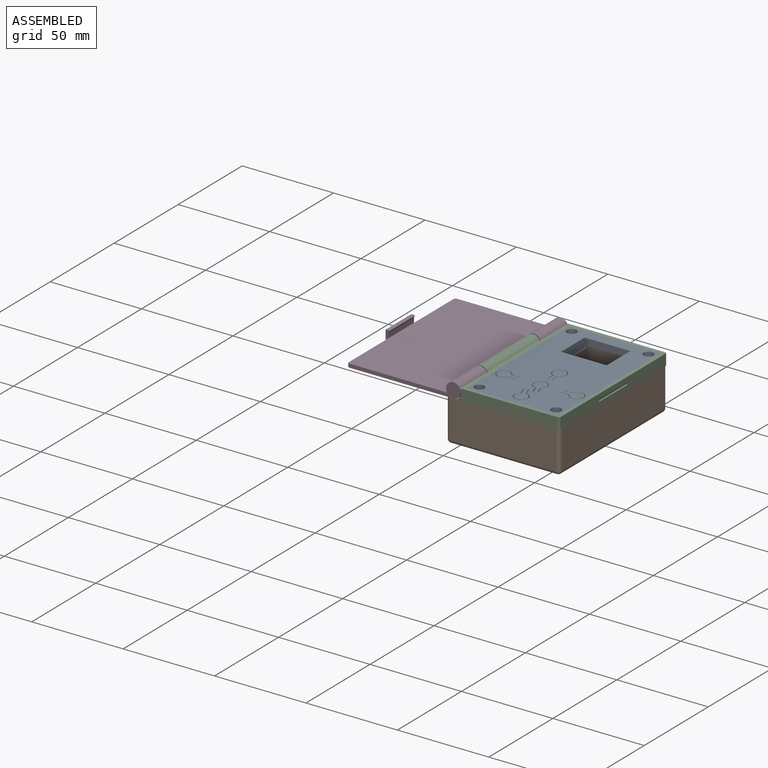
[diagram: assembled view]
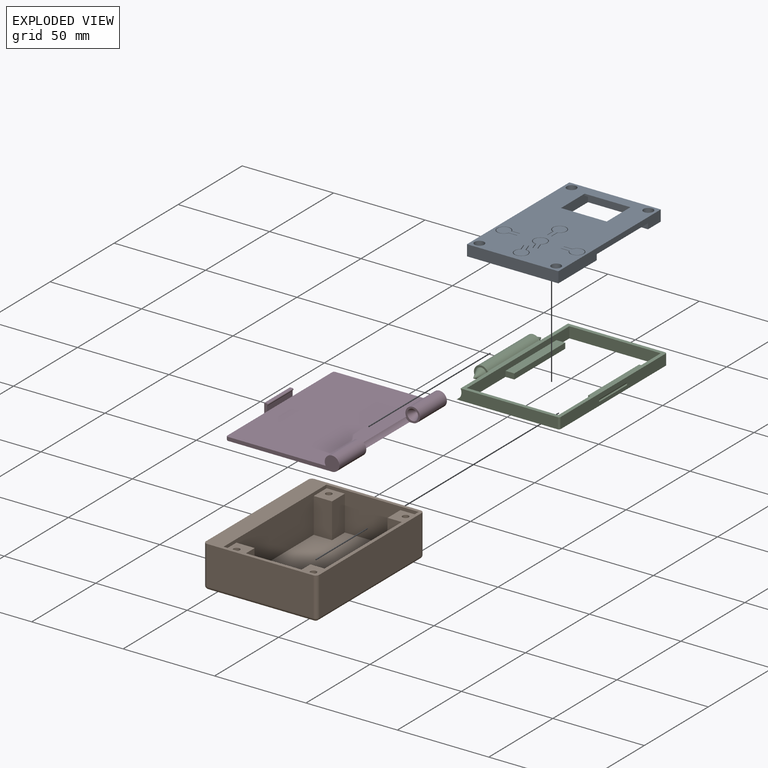
[diagram: exploded view]
GUIDED TOUR — FREECAD ASSEMBLY "BeerTrackerV2"

This assembly has 4 components, labeled P0..P3 below (a component is one placed body or linked part; the same part can appear more than once), held together by 3 modeled joints. A joint is a constraint between two components; its type names the relative motion it leaves free:
  FASTENED — locks the two components together rigidly (no relative motion),
  REVOLUTE — leaves rotation about the listed axis free (a hinge),
  SLIDER — leaves translation along the listed axis free.
Axis/direction vectors are unit vectors and 'through' points are millimeter coordinates, both in the assembly's world frame.

MATES
  1. SLIDER [Slider] "Joint001": P0 <-> P2, axis (0.000, 0.000, 1.000) through (6.00, -40.00, -1.00) mm
  2. REVOLUTE [Revolute] "Joint": P2 <-> P3, axis (0.000, -1.000, 0.000) through (0.00, -20.30, 0.00) mm
  3. FASTENED [Fixed] "Joint002": P1 <-> P2, direction (0.000, 1.000, 0.000) through (58.00, 0.00, -4.00) mm

ASSEMBLY ORDER
  1. P2 — the base component [order heuristic]
  2. P3 — core [order heuristic]
  3. P0 [order verified]
  4. P1 [order verified]
Order-tag legend:
  [order verified] — this step's position reverses a verified removal order: the component was checked to insert without passing through the ones already placed.
  [order heuristic] — the first 2 components form the assembly's core: parts whose collision-free extraction could not be verified, listed in mate-graph order.

Of the 4 components, 4 carry a construction recipe — the FreeCAD feature program (sketches with constraints, then the solid features that consume them) that regenerates the part from scratch, quoted from this document or from the linked companion document it references; the rest are supplied as boundary geometry only. The tour below walks the components in assembly order: each is shown spotlighted twice — in the assembled view, then in the exploded view, where a leader line traces a displaced component back to its assembled socket (components that stay in place when exploded have no leader line; saturated green if recipe-attached, orange if geometry-only; every other component desaturated gray) — followed by its recipe or geometry summary and the mates that hold it.
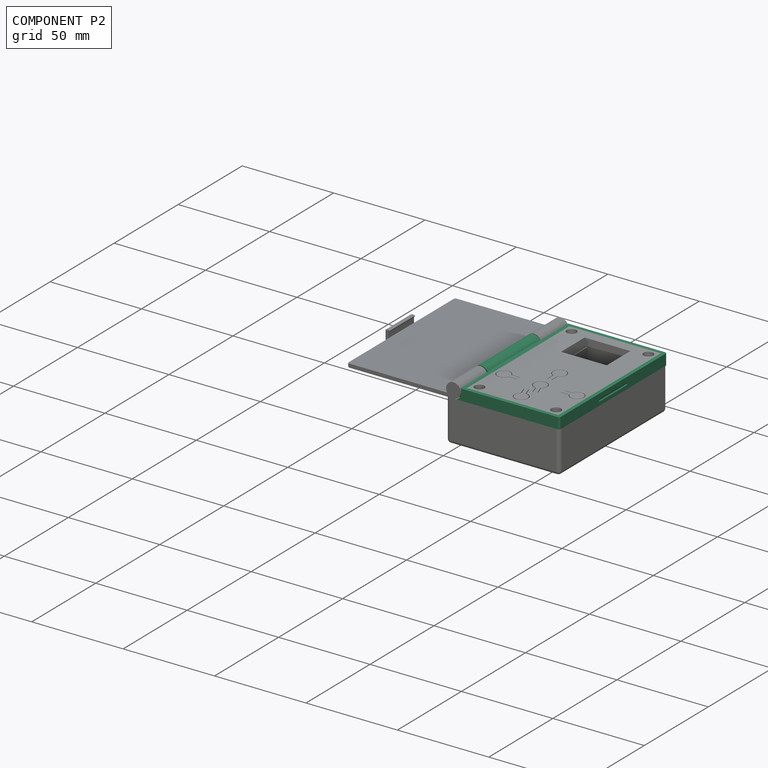
[diagram: component P2 — assembled]
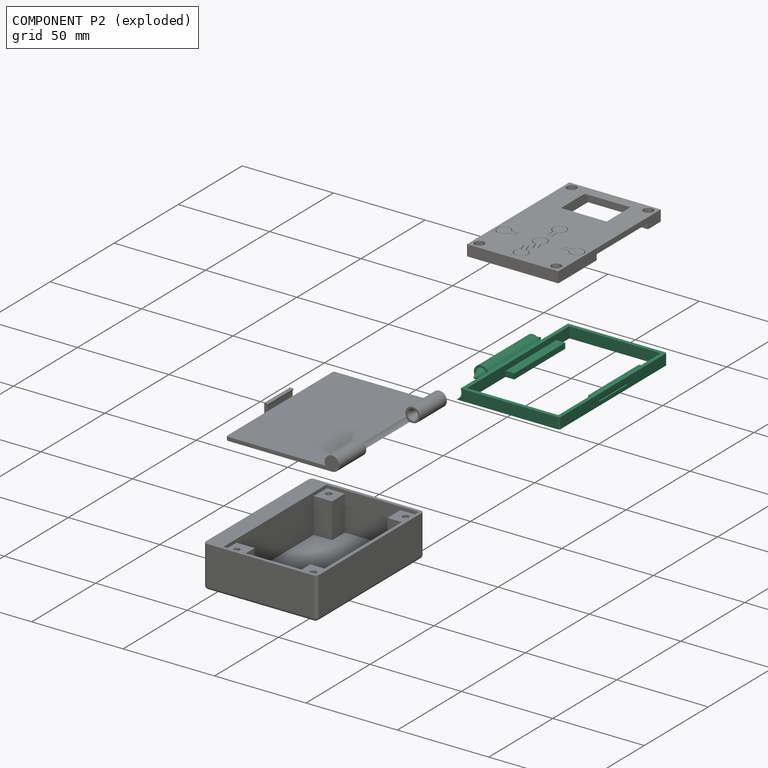
[diagram: component P2 — exploded]
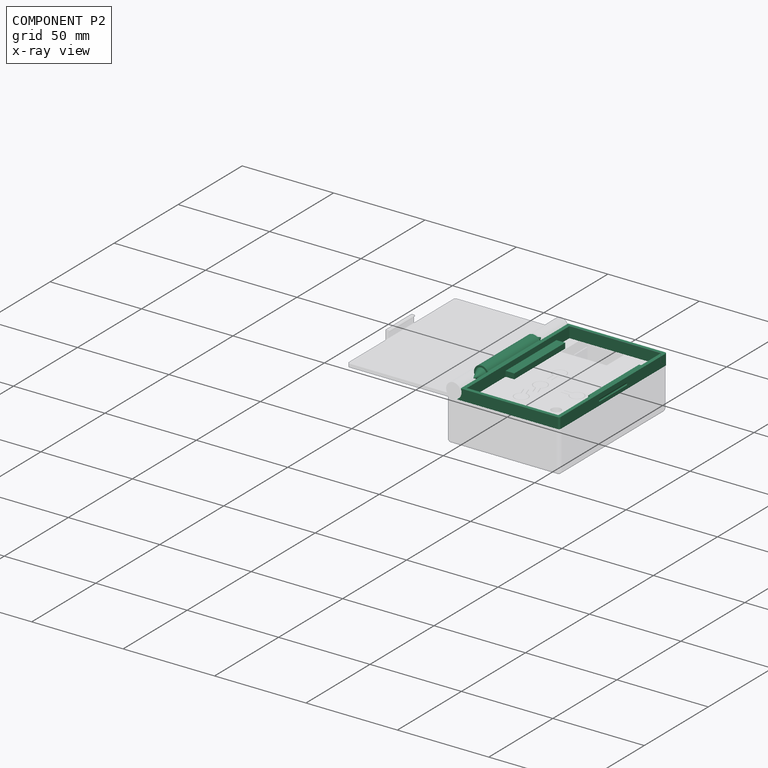
[diagram: component P2 — x-ray view]
COMPONENT P2 — recipe-attached ("TopBottom001", modeled in this document).
Held by: SLIDER mate "Joint001" to P0; REVOLUTE mate "Joint" to P3; FASTENED mate "Joint002" to P1.
Construction recipe (the document's own serialized feature program — sketch geometry with constraints, then the solid features built on it; lengths are millimeters unless a unit is written):

FEATURE [Sketcher::SketchObject] Sketch003
  ArcFitTolerance = 1e-06
  AttachmentSupport = -> [XZ_Plane001]
  FullyConstrained = true
  MakeInternals = false
  MapMode = 5
  Placement = pos=(0,0,0) rot=(1,0,0;1.5708rad)
  sketch-geometry (1):
    g0: Circle CenterX=0 CenterY=0 CenterZ=0 NormalX=0 NormalY=0 NormalZ=1 AngleXU=0 Radius=4
  constraints (2):
    c: Coincident(g0,g-1)
    c: Diameter(g0) = 8
FEATURE [PartDesign::Pad] Pad002
  Direction = (0,-1,2e-16)
  Length = 40.6
  Length2 = 10
  Midplane = true
  Placement = pos=(0,0,0) rot=(1,0,0;1.5708rad)
  Profile = -> Sketch003
  ReferenceAxis = -> Sketch003 [N_Axis]
  Refine = true
  Suppressed = false
  Type = 0
  expr: Length = (VarSet.Length + VarSet.WallThickness) / 2 - 0.4 mm
FEATURE [Sketcher::SketchObject] Sketch006
  ArcFitTolerance = 1e-06
  AttachmentSupport = -> [Pad002]
  FullyConstrained = true
  MakeInternals = false
  MapMode = 5
  Placement = pos=(0,-20.3,0) rot=(1,0,0;1.5708rad)
  sketch-geometry (1):
    g0: Circle CenterX=0 CenterY=0 CenterZ=0 NormalX=0 NormalY=0 NormalZ=1 AngleXU=0 Radius=3
  constraints (2):
    c: Coincident(g0,g-1)
    c: Diameter(g0) = 6
FEATURE [PartDesign::Pad] Pad003
  BaseFeature = -> Pad002
  Direction = (0,-1,2e-16)
  Length = 6
  Length2 = 10
  Placement = pos=(0,0,0) rot=(1,0,0;1.5708rad)
  Profile = -> Sketch006
  ReferenceAxis = -> Sketch006 [N_Axis]
  Suppressed = false
  TaperAngle = -25
  Type = 0
FEATURE [PartDesign::Mirrored] Mirrored001
  BaseFeature = -> Pad003
  MirrorPlane = -> XZ_Plane001
  Originals = -> [Pad003]
  Placement = pos=(0,0,0) rot=(1,0,0;1.5708rad)
  Suppressed = false
  TransformMode = 0
FEATURE [Sketcher::SketchObject] Sketch007
  ArcFitTolerance = 1e-06
  AttachmentSupport = -> [XZ_Plane001]
  ExternalGeometry = -> [Mirrored001]
  FullyConstrained = true
  MakeInternals = false
  MapMode = 5
  Placement = pos=(0,0,0) rot=(1,0,0;1.5708rad)
  expr: Constraints[20] = VarSet.Width + 2 * VarSet.WallThickness
  expr: Constraints[21] = VarSet.WallThickness
  sketch-geometry (7):
    g0: LineSegment [constr] StartX=0 StartY=4 StartZ=0 EndX=0 EndY=2 EndZ=0
    g1: LineSegment [constr] StartX=0 StartY=2 StartZ=0 EndX=3.4641 EndY=2 EndZ=0
    g2: ArcOfCircle CenterX=0 CenterY=0 CenterZ=0 NormalX=0 NormalY=0 NormalZ=1 AngleXU=0 Radius=4 StartAngle=4.71239 EndAngle=6.80678
    g3: LineSegment StartX=-7e-16 StartY=-4 StartZ=0 EndX=58 EndY=-4 EndZ=0
    g4: LineSegment StartX=3.4641 StartY=2 StartZ=0 EndX=58 EndY=2 EndZ=0
    g5: LineSegment StartX=58 StartY=2 StartZ=0 EndX=58 EndY=-4 EndZ=0
    g6: LineSegment [constr] StartX=4 StartY=2 StartZ=0 EndX=4 EndY=0 EndZ=0
  constraints (22):
    c: PointOnObject(g0,g-3)
    c: PointOnObject(g0,g-2)
    c: PointOnObject(g0,g-2)
    c: Coincident(g1,g0)
    c: PointOnObject(g1,g-3)
    c: Horizontal(g1)
    c: Coincident(g2,g-1)
    c: Coincident(g2,g1)
    c: PointOnObject(g2,g-2)
    c: Coincident(g3,g2)
    c: Horizontal(g3)
    c: Coincident(g4,g1)
    c: Horizontal(g4)
    c: Coincident(g5,g4)
    c: Vertical(g5)
    c: Coincident(g5,g3)
    c: PointOnObject(g6,g4)
    c: Vertical(g6)
    c: PointOnObject(g6,g2)
    c: PointOnObject(g6,g-1)
    c: DistanceX(g6,g4) = 54
    c: DistanceY(g0,g0) = 2
FEATURE [PartDesign::Pad] Pad004
  BaseFeature = -> Mirrored001
  Direction = (0,-1,2e-16)
  Length = 84
  Length2 = 10
  Midplane = true
  Placement = pos=(0,0,0) rot=(1,0,0;1.5708rad)
  Profile = -> Sketch007
  ReferenceAxis = -> Sketch007 [N_Axis]
  Suppressed = false
  Type = 0
  expr: Length = VarSet.Length + VarSet.WallThickness * 2
FEATURE [Sketcher::SketchObject] Sketch008
  ArcFitTolerance = 1e-06
  AttachmentSupport = -> [Pad004]
  ExternalGeometry = -> [Pad004]
  FullyConstrained = true
  MakeInternals = false
  MapMode = 5
  Placement = pos=(0,-42,0) rot=(1,0,0;1.5708rad)
  sketch-geometry (4):
    g0: ArcOfCircle CenterX=0 CenterY=0 CenterZ=0 NormalX=0 NormalY=0 NormalZ=1 AngleXU=0 Radius=4 StartAngle=4.71239 EndAngle=6.80678
    g1: ArcOfCircle CenterX=0 CenterY=0 CenterZ=0 NormalX=0 NormalY=0 NormalZ=1 AngleXU=0 Radius=4.35101 StartAngle=5.11682 EndAngle=6.7608
    g2: LineSegment StartX=-7e-16 StartY=-4 StartZ=0 EndX=1.7121 EndY=-4 EndZ=0
    g3: LineSegment StartX=3.4641 StartY=2 StartZ=0 EndX=3.8641 EndY=2 EndZ=0
  constraints (11):
    c: Coincident(g0,g-3)
    c: Coincident(g0,g-1)
    c: PointOnObject(g0,g-2)
    c: Coincident(g1,g0)
    c: Coincident(g2,g0)
    c: Coincident(g2,g1)
    c: Horizontal(g2)
    c: Coincident(g3,g0)
    c: Coincident(g3,g1)
    c: Horizontal(g3)
    c: Distance(g3,g3) = 0.4
FEATURE [PartDesign::Pocket] Pocket002
  BaseFeature = -> Pad004
  Direction = (0,1,-2e-16)
  Length = 22
  Length2 = 5
  Placement = pos=(0,0,0) rot=(1,0,0;1.5708rad)
  Profile = -> Sketch008
  ReferenceAxis = -> Sketch008 [N_Axis]
  Suppressed = false
  Type = 0
  expr: Length = (VarSet.Length + VarSet.WallThickness * 2) / 4 + 1 mm
FEATURE [PartDesign::Mirrored] Mirrored002
  BaseFeature = -> Pocket002
  MirrorPlane = -> XZ_Plane001
  Originals = -> [Pocket002]
  Placement = pos=(0,0,0) rot=(1,0,0;1.5708rad)
  Suppressed = false
  TransformMode = 0
FEATURE [Sketcher::SketchObject] Sketch010
  ArcFitTolerance = 1e-06
  AttachmentSupport = -> [Mirrored002]
  ExternalGeometry = -> [Mirrored002]
  FullyConstrained = true
  MakeInternals = false
  MapMode = 5
  Placement = pos=(0,9e-16,2) rot=(0,0,1;3.14159rad)
  expr: Constraints[17] = VarSet.WallThickness
  expr: Constraints[8] = VarSet.Width
  expr: Constraints[9] = VarSet.Length
  sketch-geometry (6):
    g0: LineSegment StartX=-56 StartY=40 StartZ=0 EndX=-56 EndY=-40 EndZ=0
    g1: LineSegment StartX=-56 StartY=-40 StartZ=0 EndX=-6 EndY=-40 EndZ=0
    g2: LineSegment StartX=-6 StartY=-40 StartZ=0 EndX=-6 EndY=40 EndZ=0
    g3: LineSegment StartX=-6 StartY=40 StartZ=0 EndX=-56 EndY=40 EndZ=0
    g4: LineSegment [constr] StartX=-56 StartY=-42 StartZ=0 EndX=-56 EndY=-40 EndZ=0
    g5: LineSegment [constr] StartX=-58 StartY=-40 StartZ=0 EndX=-56 EndY=-40 EndZ=0
  constraints (18):
    c: Coincident(g0,g1)
    c: Coincident(g1,g2)
    c: Coincident(g2,g3)
    c: Coincident(g3,g0)
    c: Vertical(g0)
    c: Vertical(g2)
    c: Horizontal(g1)
    c: Horizontal(g3)
    c: DistanceX(g1,g1) = 50
    c: DistanceY(g0,g0) = 80
    c: PointOnObject(g4,g-3)
    c: Coincident(g4,g0)
    c: PointOnObject(g5,g-4)
    c: Coincident(g5,g0)
    c: Horizontal(g5)
    c: Vertical(g4)
    c: Equal(g4,g5)
    c: DistanceY(g4,g4) = 2
FEATURE [PartDesign::Pocket] Pocket004
  BaseFeature = -> Mirrored002
  Direction = (0,0,-1)
  Length = 0
  Length2 = 5
  Placement = pos=(0,0,0) rot=(1,0,0;1.5708rad)
  Profile = -> Sketch010
  ReferenceAxis = -> Sketch010 [N_Axis]
  Suppressed = false
  Type = 3
  UpToFace = -> Mirrored002 [Face4]
FEATURE [Sketcher::SketchObject] Sketch022
  ArcFitTolerance = 1e-06
  AttachmentSupport = -> [Pocket004]
  ExternalGeometry = -> [Pocket004]
  FullyConstrained = true
  MakeInternals = false
  MapMode = 5
  Placement = pos=(0,-1.8e-15,-4) rot=(1,0,0;3.14159rad)
  sketch-geometry (9):
    g0: LineSegment StartX=6 StartY=-29.9 StartZ=0 EndX=10.8 EndY=-29.9 EndZ=0
    g1: LineSegment StartX=10.8 StartY=-29.9 StartZ=0 EndX=10.8 EndY=9.9 EndZ=0
    g2: LineSegment StartX=10.8 StartY=9.9 StartZ=0 EndX=6 EndY=9.9 EndZ=0
    g3: LineSegment StartX=6 StartY=9.9 StartZ=0 EndX=6 EndY=-29.9 EndZ=0
    g4: LineSegment StartX=56 StartY=9.9 StartZ=0 EndX=51.2 EndY=9.9 EndZ=0
    g5: LineSegment StartX=51.2 StartY=9.9 StartZ=0 EndX=51.2 EndY=-29.9 EndZ=0
    g6: LineSegment StartX=51.2 StartY=-29.9 StartZ=0 EndX=56 EndY=-29.9 EndZ=0
    g7: LineSegment StartX=56 StartY=-29.9 StartZ=0 EndX=56 EndY=9.9 EndZ=0
    g8: LineSegment [constr] StartX=10.8 StartY=-29.9 StartZ=0 EndX=51.2 EndY=-29.9 EndZ=0
  constraints (26):
    c: Coincident(g0,g1)
    c: Coincident(g1,g2)
    c: Coincident(g2,g3)
    c: Coincident(g3,g0)
    c: Horizontal(g0)
    c: Horizontal(g2)
    c: Vertical(g1)
    c: Vertical(g3)
    c: PointOnObject(g0,g-3)
    c: DistanceY(g1,g1) = 39.8
    c: DistanceX(g0,g0) = 4.8
    c: Distance(g1,g-1) = 9.9
    c: Coincident(g4,g5)
    c: Coincident(g5,g6)
    c: Coincident(g6,g7)
    c: Coincident(g7,g4)
    c: Horizontal(g4)
    c: Horizontal(g6)
    c: Vertical(g5)
    c: Vertical(g7)
    c: PointOnObject(g4,g-4)
    c: Equal(g1,g5)
    c: Equal(g6,g0)
    c: Coincident(g8,g0)
    c: Horizontal(g8)
    c: Coincident(g8,g5)
FEATURE [PartDesign::Pad] Pad006
  BaseFeature = -> Pocket004
  Direction = (0,0,-1)
  Length = 3
  Length2 = 10
  Placement = pos=(0,0,0) rot=(1,0,0;1.5708rad)
  Profile = -> Sketch022
  ReferenceAxis = -> Sketch022 [N_Axis]
  Refine = true
  Reversed = true
  Suppressed = false
  Type = 0
FEATURE [Sketcher::SketchObject] Sketch031
  ArcFitTolerance = 1e-06
  AttachmentSupport = -> [XZ_Plane001]
  ExternalGeometry = -> [Pad006]
  FullyConstrained = true
  MakeInternals = false
  MapMode = 5
  Placement = pos=(0,0,0) rot=(1,0,0;1.5708rad)
  expr: Constraints[7] = 6 mm - VarSet.WallThickness
  sketch-geometry (3):
    g0: ArcOfCircle CenterX=58 CenterY=-1.5 CenterZ=0 NormalX=0 NormalY=0 NormalZ=1 AngleXU=0 Radius=0.5 StartAngle=1.5708 EndAngle=4.71239
    g1: LineSegment StartX=58 StartY=-1 StartZ=0 EndX=58 EndY=-2 EndZ=0
    g2: LineSegment [constr] StartX=58 StartY=2 StartZ=0 EndX=58 EndY=-1 EndZ=0
  constraints (9):
    c: Vertical(g1)
    c: PointOnObject(g0,g1)
    c: Coincident(g0,g1)
    c: Coincident(g0,g1)
    c: Coincident(g2,g-3)
    c: Coincident(g2,g0)
    c: Vertical(g2)
    c: DistanceY(g0,g2) = 4
    c: Radius(g0) = 0.5
FEATURE [PartDesign::Pocket] Pocket018
  BaseFeature = -> Pad006
  Direction = (0,1,-2e-16)
  Length = 22
  Length2 = 5
  Midplane = true
  Placement = pos=(0,0,0) rot=(1,0,0;1.5708rad)
  Profile = -> Sketch031
  ReferenceAxis = -> Sketch031 [N_Axis]
  Suppressed = false
  Type = 0
FEATURE [PartDesign::Fillet] Fillet001
  Base = -> Pocket018 [Edge23]
  BaseFeature = -> Pocket018
  Placement = pos=(0,0,0) rot=(1,0,0;1.5708rad)
  Radius = 0.5
  SupportTransform = false
  Suppressed = false
  UseAllEdges = false
FEATURE [PartDesign::Fillet] Fillet003
  Base = -> Fillet001 [Edge9,Edge8]
  BaseFeature = -> Fillet001
  Placement = pos=(0,0,0) rot=(1,0,0;1.5708rad)
  Radius = 1
  SupportTransform = false
  Suppressed = false
  UseAllEdges = false
FEATURE [PartDesign::Body] Body001  label="TopBottom"
  AllowCompound = false
  Group = -> [Sketch003,Pad002,Sketch006,Pad003,Mirrored001,Sketch007,Pad004,Sketch008,Pocket002,Mirrored002,Sketch010,Pocket004,Sketch022,Pad006,Sketch031,Pocket018,Fillet001,Fillet003]
  Origin = -> Origin001
  Tip = -> Fillet003
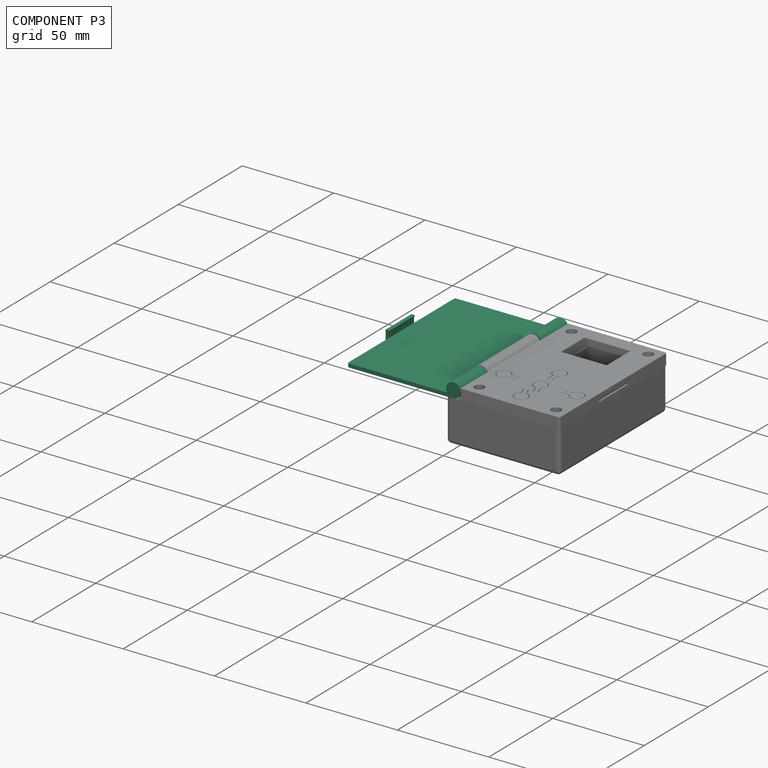
[diagram: component P3 — assembled]
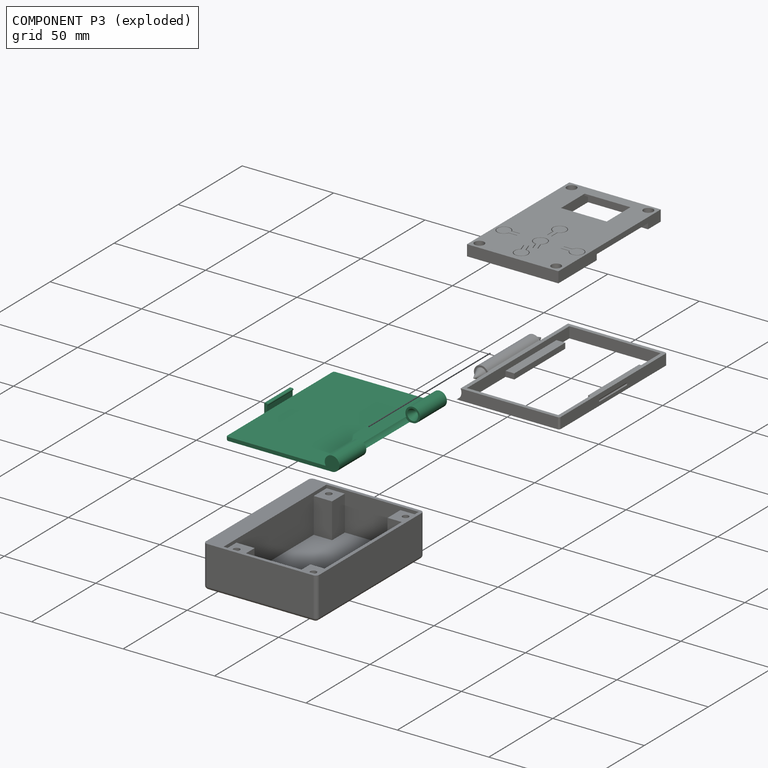
[diagram: component P3 — exploded]
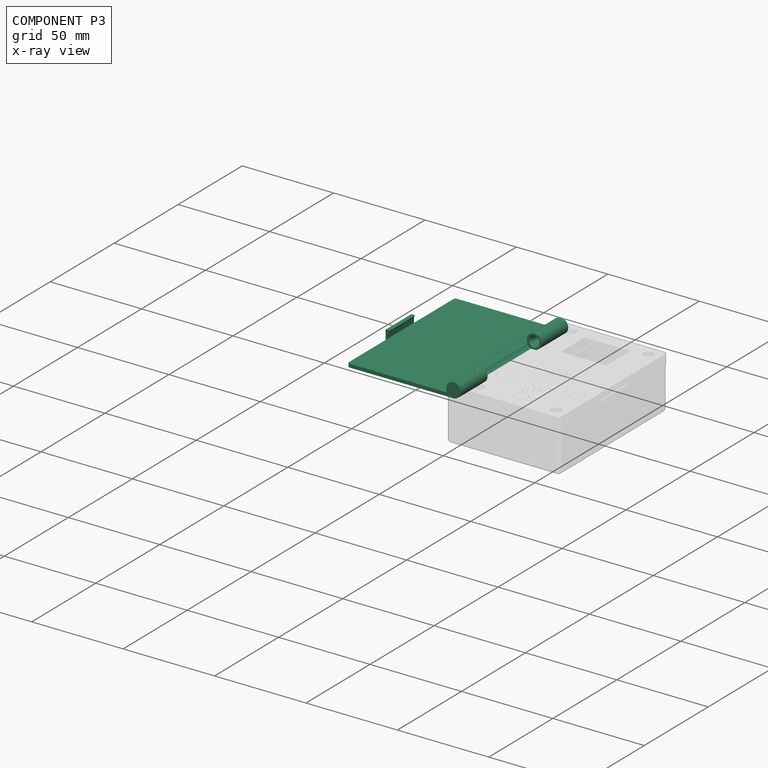
[diagram: component P3 — x-ray view]
COMPONENT P3 — recipe-attached ("TopTop001", modeled in this document).
Held by: REVOLUTE mate "Joint" to P2.
Construction recipe (the document's own serialized feature program — sketch geometry with constraints, then the solid features built on it; lengths are millimeters unless a unit is written):

FEATURE [Sketcher::SketchObject] Sketch
  ArcFitTolerance = 1e-06
  AttachmentOffset = pos=(0,0,21) rot=(0,0,1;0rad)
  AttachmentSupport = -> [XZ_Plane]
  FullyConstrained = true
  MakeInternals = false
  MapMode = 5
  Placement = pos=(0,-21,4.7e-15) rot=(1,0,0;1.5708rad)
  expr: .AttachmentOffset.Base.z = (VarSet.Length + 2 * VarSet.WallThickness) / 4
  sketch-geometry (1):
    g0: Circle CenterX=0 CenterY=0 CenterZ=0 NormalX=0 NormalY=0 NormalZ=1 AngleXU=0 Radius=4
  constraints (2):
    c: Coincident(g0,g-1)
    c: Diameter(g0) = 8
FEATURE [PartDesign::Pad] Pad
  Direction = (0,-1,2e-16)
  Length = 21
  Length2 = 10
  Placement = pos=(0,0,0) rot=(1,0,0;1.5708rad)
  Profile = -> Sketch
  ReferenceAxis = -> Sketch [N_Axis]
  Refine = true
  Suppressed = false
  Type = 0
  expr: Length = (VarSet.Length + 2 * VarSet.WallThickness) / 4
FEATURE [Sketcher::SketchObject] Sketch001
  ArcFitTolerance = 1e-06
  AttachmentSupport = -> [Pad]
  ExternalGeometry = -> [Pad]
  FullyConstrained = true
  MakeInternals = false
  MapMode = 5
  Placement = pos=(0,-42,0) rot=(1,0,0;1.5708rad)
  expr: Constraints[12] = VarSet.WallThickness
  expr: Constraints[7] = VarSet.Width + VarSet.WallThickness * 2
  sketch-geometry (5):
    g0: LineSegment StartX=2.112e-13 StartY=4 StartZ=0 EndX=58 EndY=4 EndZ=0
    g1: LineSegment [constr] StartX=4 StartY=0 StartZ=0 EndX=4 EndY=4 EndZ=0
    g2: LineSegment StartX=58 StartY=4 StartZ=0 EndX=58 EndY=2 EndZ=0
    g3: LineSegment StartX=58 StartY=2 StartZ=0 EndX=3.4641 EndY=2 EndZ=0
    g4: ArcOfCircle CenterX=-6.98259e-07 CenterY=-1.20942e-06 CenterZ=0 NormalX=0 NormalY=0 NormalZ=1 AngleXU=0 Radius=4 StartAngle=0.523599 EndAngle=1.5708
  constraints (17):
    c: Horizontal(g0)
    c: PointOnObject(g0,g-2)
    c: PointOnObject(g0,g-3)
    c: Vertical(g1)
    c: PointOnObject(g1,g-1)
    c: PointOnObject(g1,g-3)
    c: PointOnObject(g1,g0)
    c: DistanceX(g1,g0) = 54
    c: Coincident(g2,g0)
    c: Vertical(g2)
    c: Coincident(g3,g2)
    c: Horizontal(g3)
    c: Distance(g2,g2) = 2
    c: Coincident(g4,g3)
    c: Coincident(g4,g0)
    c: PointOnObject(g3,g-3)
    c: Tangent(g4,g-3)
FEATURE [PartDesign::Pad] Pad001
  BaseFeature = -> Pad
  Direction = (0,-1,2e-16)
  Length = 84
  Length2 = 10
  Placement = pos=(0,0,0) rot=(1,0,0;1.5708rad)
  Profile = -> Sketch001
  ReferenceAxis = -> Sketch001 [N_Axis]
  Refine = true
  Reversed = true
  Suppressed = false
  Type = 0
  expr: Length = VarSet.Length + VarSet.WallThickness * 2
FEATURE [Sketcher::SketchObject] Sketch002
  ArcFitTolerance = 1e-06
  AttachmentSupport = -> [Pad001]
  FullyConstrained = true
  MakeInternals = false
  MapMode = 5
  Placement = pos=(0,-21,0) rot=(-1,0,0;1.5708rad)
  sketch-geometry (1):
    g0: Circle CenterX=0 CenterY=0 CenterZ=0 NormalX=0 NormalY=0 NormalZ=1 AngleXU=0 Radius=3
  constraints (2):
    c: Coincident(g0,g-1)
    c: Diameter(g0) = 6
FEATURE [PartDesign::Pocket] Pocket
  BaseFeature = -> Pad001
  Direction = (0,-1,-2e-16)
  Length = 6
  Length2 = 5
  Placement = pos=(0,0,0) rot=(1,0,0;1.5708rad)
  Profile = -> Sketch002
  ReferenceAxis = -> Sketch002 [N_Axis]
  Refine = true
  Suppressed = false
  TaperAngle = -25
  Type = 0
FEATURE [PartDesign::Mirrored] Mirrored
  BaseFeature = -> Pocket
  MirrorPlane = -> XZ_Plane
  Originals = -> [Pad,Pocket]
  Placement = pos=(0,0,0) rot=(1,0,0;1.5708rad)
  Refine = true
  Suppressed = false
  TransformMode = 0
FEATURE [Sketcher::SketchObject] Sketch009
  ArcFitTolerance = 1e-06
  AttachmentSupport = -> [Mirrored]
  ExternalGeometry = -> [Mirrored]
  FullyConstrained = true
  MakeInternals = false
  MapMode = 5
  Placement = pos=(0,-21,0) rot=(-1,0,0;1.5708rad)
  sketch-geometry (4):
    g0: ArcOfCircle CenterX=0 CenterY=0 CenterZ=0 NormalX=0 NormalY=0 NormalZ=1 AngleXU=0 Radius=4 StartAngle=4.71239 EndAngle=5.75959
    g1: LineSegment StartX=3.4641 StartY=-2 StartZ=0 EndX=3.8641 EndY=-2 EndZ=0
    g2: LineSegment StartX=-7e-16 StartY=-4 StartZ=0 EndX=1.7121 EndY=-4 EndZ=0
    g3: ArcOfCircle CenterX=0 CenterY=0 CenterZ=0 NormalX=0 NormalY=0 NormalZ=1 AngleXU=0 Radius=4.35101 StartAngle=5.11682 EndAngle=5.80557
  constraints (10):
    c: Coincident(g0,g-1)
    c: Coincident(g0,g-3)
    c: PointOnObject(g0,g-2)
    c: Coincident(g1,g0)
    c: Horizontal(g1)
    c: Tangent(g2,g0) = -1.5708
    c: Coincident(g3,g1)
    c: Coincident(g2,g3)
    c: Coincident(g3,g0)
    c: Distance(g1,g1) = 0.4
FEATURE [PartDesign::Pocket] Pocket003
  BaseFeature = -> Mirrored
  Direction = (0,-1,-2e-16)
  Length = 42
  Length2 = 5
  Placement = pos=(0,0,0) rot=(1,0,0;1.5708rad)
  Profile = -> Sketch009
  ReferenceAxis = -> Sketch009 [N_Axis]
  Reversed = true
  Suppressed = false
  Type = 0
  expr: Length = (VarSet.Length + 2 * VarSet.WallThickness) / 2
FEATURE [Sketcher::SketchObject] Sketch029
  ArcFitTolerance = 1e-06
  AttachmentSupport = -> [Pocket003]
  ExternalGeometry = -> [Pocket003]
  FullyConstrained = true
  MakeInternals = false
  MapMode = 5
  Placement = pos=(0,1.8e-15,4) rot=(0,0,1;3.14159rad)
  expr: Constraints[9] = VarSet.WallThickness
  sketch-geometry (4):
    g0: LineSegment StartX=-58 StartY=10 StartZ=0 EndX=-60 EndY=10 EndZ=0
    g1: LineSegment StartX=-60 StartY=10 StartZ=0 EndX=-60 EndY=-10 EndZ=0
    g2: LineSegment StartX=-60 StartY=-10 StartZ=0 EndX=-58 EndY=-10 EndZ=0
    g3: LineSegment StartX=-58 StartY=-10 StartZ=0 EndX=-58 EndY=10 EndZ=0
  constraints (11):
    c: Coincident(g0,g1)
    c: Coincident(g1,g2)
    c: Coincident(g2,g3)
    c: Coincident(g3,g0)
    c: Horizontal(g0)
    c: Horizontal(g2)
    c: Vertical(g3)
    c: PointOnObject(g0,g-3)
    c: Symmetric(g0,g1,g-1)
    c: Distance(g0,g0) = 2
    c: DistanceY(g1,g1) = 20
FEATURE [PartDesign::Pad] Pad009
  BaseFeature = -> Pocket003
  Direction = (0,0,1)
  Length = 6
  Length2 = 10
  Placement = pos=(0,0,0) rot=(1,0,0;1.5708rad)
  Profile = -> Sketch029
  ReferenceAxis = -> Sketch029 [N_Axis]
  Reversed = true
  Suppressed = false
  Type = 0
  expr: Length = VarSet.WallThickness + 6 mm / 2 + 1 mm
FEATURE [Sketcher::SketchObject] Sketch030
  ArcFitTolerance = 1e-06
  AttachmentSupport = -> [Pad009]
  ExternalGeometry = -> [Pad009]
  FullyConstrained = true
  MakeInternals = false
  MapMode = 5
  Placement = pos=(0,-10,0) rot=(1,0,0;1.5708rad)
  sketch-geometry (2):
    g0: ArcOfCircle CenterX=58 CenterY=-1.5 CenterZ=0 NormalX=0 NormalY=0 NormalZ=1 AngleXU=0 Radius=0.5 StartAngle=1.5708 EndAngle=4.71239
    g1: LineSegment StartX=58 StartY=-1 StartZ=0 EndX=58 EndY=-2 EndZ=0
  constraints (6):
    c: PointOnObject(g0,g-3)
    c: PointOnObject(g1,g-3)
    c: Coincident(g1,g-3)
    c: Coincident(g0,g1)
    c: Coincident(g0,g1)
    c: Radius(g0) = 0.5
FEATURE [PartDesign::Pad] Pad010
  BaseFeature = -> Pad009
  Direction = (0,-1,2e-16)
  Length = 20
  Length2 = 10
  Placement = pos=(0,0,0) rot=(1,0,0;1.5708rad)
  Profile = -> Sketch030
  ReferenceAxis = -> Sketch030 [N_Axis]
  Reversed = true
  Suppressed = false
  Type = 0
FEATURE [PartDesign::Fillet] Fillet
  Base = -> Pad010 [Edge44]
  BaseFeature = -> Pad010
  Placement = pos=(0,0,0) rot=(1,0,0;1.5708rad)
  Radius = 0.5
  SupportTransform = false
  Suppressed = false
  UseAllEdges = false
FEATURE [PartDesign::Fillet] Fillet002
  Base = -> Fillet [Edge31,Edge30,Edge56,Edge57,Edge32,Edge10,Edge34,Edge28]
  BaseFeature = -> Fillet
  Placement = pos=(0,0,0) rot=(1,0,0;1.5708rad)
  Radius = 1
  SupportTransform = false
  Suppressed = false
  UseAllEdges = false
FEATURE [PartDesign::Body] Body  label="TopTop"
  AllowCompound = false
  Group = -> [Sketch,Pad,Sketch001,Pad001,Sketch002,Pocket,Mirrored,Sketch009,Pocket003,Sketch029,Pad009,Sketch030,Pad010,Fillet,Fillet002]
  Origin = -> Origin
  Tip = -> Fillet002
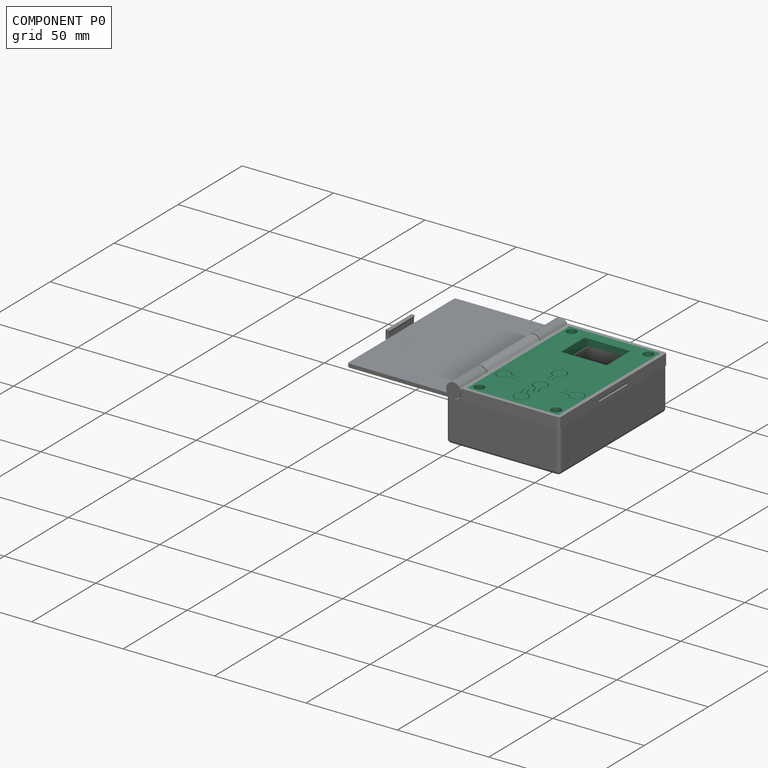
[diagram: component P0 — assembled]
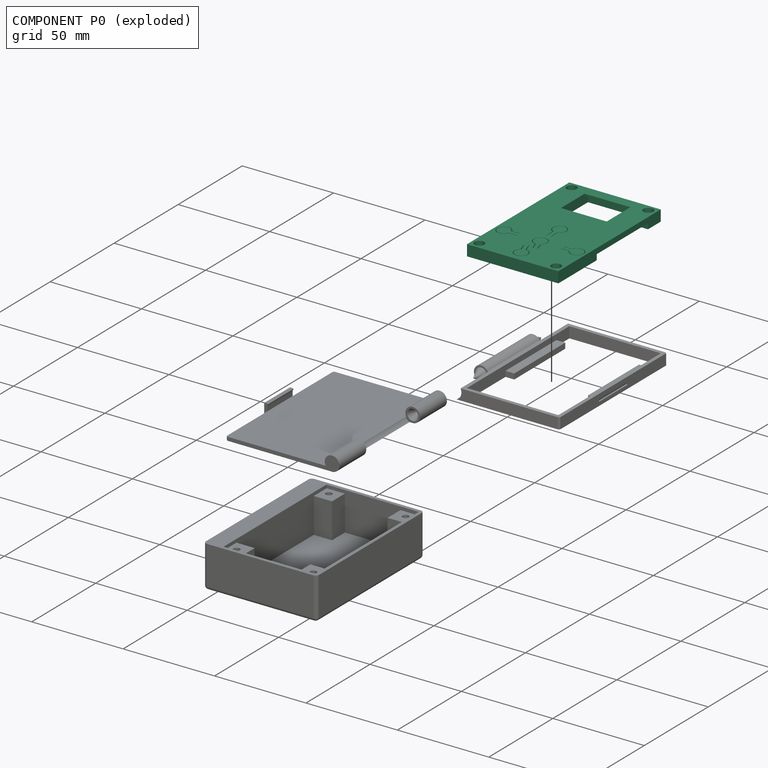
[diagram: component P0 — exploded]
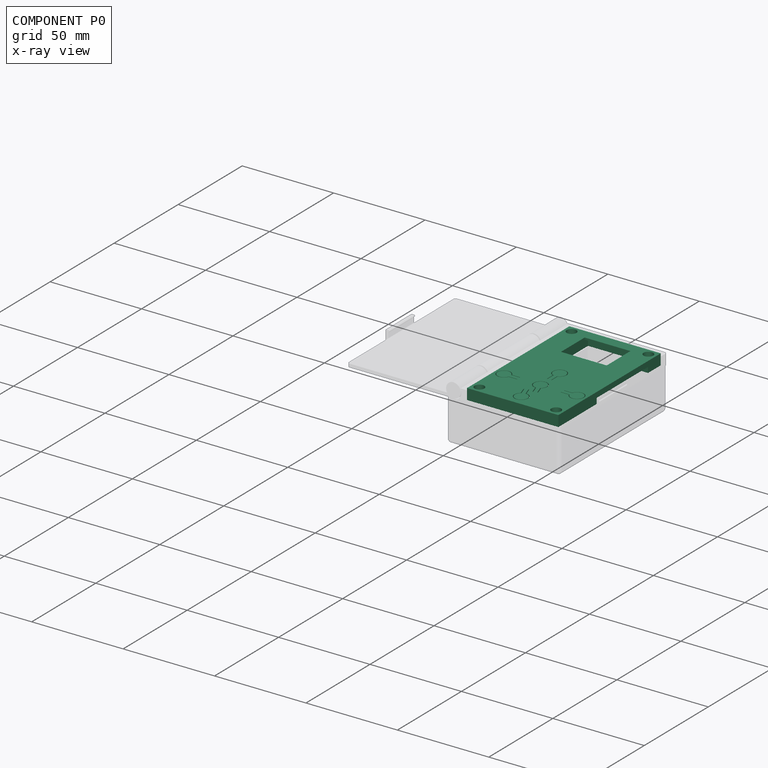
[diagram: component P0 — x-ray view]
COMPONENT P0 — recipe-attached ("BtnCover001", modeled in this document).
Held by: SLIDER mate "Joint001" to P2.
Construction recipe (the document's own serialized feature program — sketch geometry with constraints, then the solid features built on it; lengths are millimeters unless a unit is written):

FEATURE [Sketcher::SketchObject] Sketch011
  ArcFitTolerance = 1e-06
  AttachmentSupport = -> [XY_Plane003]
  FullyConstrained = true
  MakeInternals = false
  MapMode = 5
  expr: Constraints[8] = VarSet.Width
  expr: Constraints[9] = VarSet.Length
  sketch-geometry (4):
    g0: LineSegment StartX=-25 StartY=40 StartZ=0 EndX=-25 EndY=-40 EndZ=0
    g1: LineSegment StartX=-25 StartY=-40 StartZ=0 EndX=25 EndY=-40 EndZ=0
    g2: LineSegment StartX=25 StartY=-40 StartZ=0 EndX=25 EndY=40 EndZ=0
    g3: LineSegment StartX=25 StartY=40 StartZ=0 EndX=-25 EndY=40 EndZ=0
  constraints (10):
    c: Coincident(g0,g1)
    c: Coincident(g1,g2)
    c: Coincident(g2,g3)
    c: Coincident(g3,g0)
    c: Vertical(g2)
    c: Horizontal(g1)
    c: Symmetric(g0,g2,g-2)
    c: Symmetric(g0,g0,g-1)
    c: DistanceX(g3,g3) = 50
    c: DistanceY(g2,g2) = 80
FEATURE [PartDesign::Pad] Pad005
  Direction = (0,0,1)
  Length = 6
  Length2 = 10
  Profile = -> Sketch011
  ReferenceAxis = -> Sketch011 [N_Axis]
  Refine = true
  Suppressed = false
  Type = 0
FEATURE [Sketcher::SketchObject] Sketch012
  ArcFitTolerance = 1e-06
  AttachmentSupport = -> [Pad005]
  FullyConstrained = true
  MakeInternals = false
  MapMode = 5
  Placement = pos=(0,0,6) rot=(0,0,1;0rad)
  sketch-geometry (8):
    g0: LineSegment [constr] StartX=-21 StartY=36 StartZ=0 EndX=-21 EndY=-36 EndZ=0
    g1: LineSegment [constr] StartX=-21 StartY=-36 StartZ=0 EndX=21 EndY=-36 EndZ=0
    g2: LineSegment [constr] StartX=21 StartY=-36 StartZ=0 EndX=21 EndY=36 EndZ=0
    g3: LineSegment [constr] StartX=21 StartY=36 StartZ=0 EndX=-21 EndY=36 EndZ=0
    g4: Circle CenterX=-21 CenterY=36 CenterZ=0 NormalX=0 NormalY=0 NormalZ=1 AngleXU=0 Radius=1.7
    g5: Circle CenterX=21 CenterY=36 CenterZ=0 NormalX=0 NormalY=0 NormalZ=1 AngleXU=0 Radius=1.7
    g6: Circle CenterX=-21 CenterY=-36 CenterZ=0 NormalX=0 NormalY=0 NormalZ=1 AngleXU=0 Radius=1.7
    g7: Circle CenterX=21 CenterY=-36 CenterZ=0 NormalX=0 NormalY=0 NormalZ=1 AngleXU=0 Radius=1.7
  constraints (18):
    c: Coincident(g0,g1)
    c: Coincident(g1,g2)
    c: Coincident(g2,g3)
    c: Coincident(g3,g0)
    c: Vertical(g2)
    c: Horizontal(g3)
    c: Symmetric(g1,g0,g-2)
    c: Symmetric(g0,g0,g-1)
    c: Coincident(g4,g0)
    c: Coincident(g5,g2)
    c: Coincident(g6,g0)
    c: Coincident(g7,g1)
    c: Equal(g4,g5)
    c: Equal(g5,g7)
    c: Equal(g7,g6)
    c: DistanceY(g2,g2) = 72
    c: DistanceX(g3,g3) = 42
    c: Diameter(g5) = 3.4
FEATURE [PartDesign::Pocket] Pocket005
  BaseFeature = -> Pad005
  Direction = (0,0,-1)
  Length = 0
  Length2 = 5
  Profile = -> Sketch012
  ReferenceAxis = -> Sketch012 [N_Axis]
  Refine = true
  Suppressed = false
  Type = 3
  UpToFace = -> Pad005 [Face5]
FEATURE [Sketcher::SketchObject] Sketch013
  ArcFitTolerance = 1e-06
  AttachmentSupport = -> [Pocket005]
  ExternalGeometry = -> [Pocket005]
  FullyConstrained = true
  MakeInternals = false
  MapMode = 5
  Placement = pos=(0,0,0) rot=(1,0,0;3.14159rad)
  sketch-geometry (24):
    g0: LineSegment StartX=3.5 StartY=36.3 StartZ=0 EndX=-3.5 EndY=36.3 EndZ=0
    g1: LineSegment StartX=-3.5 StartY=36.3 StartZ=0 EndX=-3.5 EndY=30.3 EndZ=0
    g2: LineSegment StartX=-3.5 StartY=30.3 StartZ=0 EndX=3.5 EndY=30.3 EndZ=0
    g3: LineSegment StartX=3.5 StartY=30.3 StartZ=0 EndX=3.5 EndY=36.3 EndZ=0
    g4: LineSegment StartX=3.5 StartY=0.3 StartZ=0 EndX=3.5 EndY=6.3 EndZ=0
    g5: LineSegment StartX=3.5 StartY=6.3 StartZ=0 EndX=-3.5 EndY=6.3 EndZ=0
    g6: LineSegment StartX=-3.5 StartY=6.3 StartZ=0 EndX=-3.5 EndY=0.3 EndZ=0
    g7: LineSegment StartX=-3.5 StartY=0.3 StartZ=0 EndX=3.5 EndY=0.3 EndZ=0
    g8: LineSegment StartX=3.5 StartY=15.3 StartZ=0 EndX=3.5 EndY=21.3 EndZ=0
    g9: LineSegment StartX=3.5 StartY=21.3 StartZ=0 EndX=-3.5 EndY=21.3 EndZ=0
    g10: LineSegment StartX=-3.5 StartY=21.3 StartZ=0 EndX=-3.5 EndY=15.3 EndZ=0
    g11: LineSegment StartX=-3.5 StartY=15.3 StartZ=0 EndX=3.5 EndY=15.3 EndZ=0
    g12: LineSegment StartX=23.5 StartY=15.3 StartZ=0 EndX=23.5 EndY=21.3 EndZ=0
    g13: LineSegment StartX=23.5 StartY=21.3 StartZ=0 EndX=16.5 EndY=21.3 EndZ=0
    g14: LineSegment StartX=16.5 StartY=21.3 StartZ=0 EndX=16.5 EndY=15.3 EndZ=0
    g15: LineSegment StartX=16.5 StartY=15.3 StartZ=0 EndX=23.5 EndY=15.3 EndZ=0
    g16: LineSegment StartX=-16.5 StartY=15.3 StartZ=0 EndX=-16.5 EndY=21.3 EndZ=0
    g17: LineSegment StartX=-16.5 StartY=21.3 StartZ=0 EndX=-23.5 EndY=21.3 EndZ=0
    g18: LineSegment StartX=-23.5 StartY=21.3 StartZ=0 EndX=-23.5 EndY=15.3 EndZ=0
    g19: LineSegment StartX=-23.5 StartY=15.3 StartZ=0 EndX=-16.5 EndY=15.3 EndZ=0
    g20: LineSegment [constr] StartX=16.5 StartY=15.3 StartZ=0 EndX=3.5 EndY=15.3 EndZ=0
    g21: LineSegment [constr] StartX=-3.5 StartY=15.3 StartZ=0 EndX=-16.5 EndY=15.3 EndZ=0
    g22: LineSegment [constr] StartX=-3.5 StartY=6.3 StartZ=0 EndX=-3.5 EndY=15.3 EndZ=0
    g23: LineSegment [constr] StartX=-3.5 StartY=21.3 StartZ=0 EndX=-3.5 EndY=30.3 EndZ=0
  constraints (65):
    c: Coincident(g0,g1)
    c: Coincident(g1,g2)
    c: Coincident(g2,g3)
    c: Coincident(g3,g0)
    c: Horizontal(g0)
    c: Vertical(g1)
    c: Vertical(g3)
    c: Coincident(g4,g5)
    c: Coincident(g5,g6)
    c: Coincident(g6,g7)
    c: Coincident(g7,g4)
    c: Vertical(g4)
    c: Vertical(g6)
    c: Horizontal(g5)
    c: Coincident(g8,g9)
    c: Coincident(g9,g10)
    c: Coincident(g10,g11)
    c: Coincident(g11,g8)
    c: Vertical(g8)
    c: Vertical(g10)
    c: Horizontal(g9)
    c: Coincident(g12,g13)
    c: Coincident(g13,g14)
    c: Coincident(g14,g15)
    c: Coincident(g15,g12)
    c: Vertical(g12)
    c: Vertical(g14)
    c: Horizontal(g13)
    c: Horizontal(g15)
    c: Coincident(g16,g17)
    c: Coincident(g17,g18)
    c: Coincident(g18,g19)
    c: Coincident(g19,g16)
    c: Vertical(g16)
    c: Vertical(g18)
    c: Horizontal(g17)
    c: Horizontal(g19)
    c: Equal(g15,g7)
    c: Equal(g7,g19)
    c: Equal(g19,g11)
    c: Equal(g11,g2)
    c: Equal(g14,g6)
    c: Equal(g6,g10)
    c: Equal(g10,g18)
    c: Equal(g18,g1)
    c: Symmetric(g8,g10,g-2)
    c: Symmetric(g4,g6,g-2)
    c: Symmetric(g2,g1,g-2)
    c: Coincident(g20,g14)
    c: Coincident(g20,g8)
    c: Coincident(g21,g10)
    c: Coincident(g21,g16)
    c: Horizontal(g21)
    c: Coincident(g22,g5)
    c: Coincident(g22,g10)
    c: Coincident(g23,g9)
    c: Coincident(g23,g1)
    c: Equal(g20,g21)
    c: Horizontal(g20)
    c: Equal(g22,g23)
    c: Distance(g20,g20) = 13
    c: Distance(g22,g22) = 9
    c: DistanceX(g5,g5) = 7
    c: DistanceY(g4,g4) = 6
    c: DistanceY(g0,g-3) = 3.7
FEATURE [PartDesign::Pocket] Pocket006
  BaseFeature = -> Pocket005
  Direction = (0,0,1)
  Length = 5
  Length2 = 5
  Profile = -> Sketch013
  ReferenceAxis = -> Sketch013 [N_Axis]
  Refine = true
  Suppressed = false
  Type = 0
FEATURE [Sketcher::SketchObject] Sketch014
  ArcFitTolerance = 1e-06
  AttachmentSupport = -> [Pocket006]
  ExternalGeometry = -> [Pocket006]
  FullyConstrained = true
  MakeInternals = false
  MapMode = 5
  Placement = pos=(0,0,0) rot=(1,0,0;3.14159rad)
  sketch-geometry (4):
    g0: LineSegment StartX=13.5 StartY=-38.1 StartZ=0 EndX=13.5 EndY=-11.1 EndZ=0
    g1: LineSegment StartX=13.5 StartY=-11.1 StartZ=0 EndX=-13.5 EndY=-11.1 EndZ=0
    g2: LineSegment StartX=-13.5 StartY=-11.1 StartZ=0 EndX=-13.5 EndY=-38.1 EndZ=0
    g3: LineSegment StartX=-13.5 StartY=-38.1 StartZ=0 EndX=13.5 EndY=-38.1 EndZ=0
  constraints (11):
    c: Coincident(g0,g1)
    c: Coincident(g1,g2)
    c: Coincident(g2,g3)
    c: Coincident(g3,g0)
    c: Vertical(g0)
    c: Vertical(g2)
    c: Horizontal(g1)
    c: Symmetric(g0,g2,g-2)
    c: DistanceY(g0,g0) = 27
    c: Equal(g1,g0)
    c: DistanceY(g-3,g0) = 1.9
FEATURE [PartDesign::Pocket] Pocket007
  BaseFeature = -> Pocket006
  Direction = (0,0,1)
  Length = 5
  Length2 = 5
  Profile = -> Sketch014
  ReferenceAxis = -> Sketch014 [N_Axis]
  Refine = true
  Suppressed = false
  Type = 0
FEATURE [Sketcher::SketchObject] Sketch015
  ArcFitTolerance = 1e-06
  AttachmentSupport = -> [Pocket007]
  ExternalGeometry = -> [Pocket007]
  FullyConstrained = true
  MakeInternals = false
  MapMode = 5
  Placement = pos=(0,0,5) rot=(1,0,0;3.14159rad)
  sketch-geometry (4):
    g0: LineSegment StartX=-12.5 StartY=-15.6 StartZ=0 EndX=-12.5 EndY=-34.1 EndZ=0
    g1: LineSegment StartX=-12.5 StartY=-34.1 StartZ=0 EndX=12.5 EndY=-34.1 EndZ=0
    g2: LineSegment StartX=12.5 StartY=-34.1 StartZ=0 EndX=12.5 EndY=-15.6 EndZ=0
    g3: LineSegment StartX=12.5 StartY=-15.6 StartZ=0 EndX=-12.5 EndY=-15.6 EndZ=0
  constraints (11):
    c: Coincident(g0,g1)
    c: Coincident(g1,g2)
    c: Coincident(g2,g3)
    c: Coincident(g3,g0)
    c: Vertical(g0)
    c: Vertical(g2)
    c: Horizontal(g1)
    c: DistanceY(g2,g2) = 18.5
    c: DistanceX(g3,g3) = 25
    c: Symmetric(g0,g2,g-2)
    c: DistanceY(g-3,g1) = 4
FEATURE [PartDesign::Pocket] Pocket008
  BaseFeature = -> Pocket007
  Direction = (0,0,1)
  Length = 0
  Length2 = 5
  Profile = -> Sketch015
  ReferenceAxis = -> Sketch015 [N_Axis]
  Refine = true
  Suppressed = false
  Type = 3
  UpToFace = -> Pocket007 [Face5]
FEATURE [Sketcher::SketchObject] Sketch017
  ArcFitTolerance = 1e-06
  AttachmentSupport = -> [Pocket008]
  ExternalGeometry = -> [Pocket008]
  FullyConstrained = true
  MakeInternals = false
  MapMode = 5
  Placement = pos=(0,0,0) rot=(1,0,0;3.14159rad)
  sketch-geometry (20):
    g0: LineSegment StartX=4.5 StartY=37.5 StartZ=0 EndX=-4.5 EndY=37.5 EndZ=0
    g1: LineSegment StartX=-4.5 StartY=37.5 StartZ=0 EndX=-4.5 EndY=22.3 EndZ=0
    g2: LineSegment StartX=-4.5 StartY=22.3 StartZ=0 EndX=-24 EndY=22.3 EndZ=0
    g3: LineSegment StartX=-24 StartY=22.3 StartZ=0 EndX=-24 EndY=14.3 EndZ=0
    g4: LineSegment StartX=-24 StartY=14.3 StartZ=0 EndX=-4.5 EndY=14.3 EndZ=0
    g5: LineSegment StartX=-4.5 StartY=14.3 StartZ=0 EndX=-4.5 EndY=-0.9 EndZ=0
    g6: LineSegment StartX=-4.5 StartY=-0.9 StartZ=0 EndX=4.5 EndY=-0.9 EndZ=0
    g7: LineSegment StartX=4.5 StartY=-0.9 StartZ=0 EndX=4.5 EndY=14.3 EndZ=0
    g8: LineSegment StartX=4.5 StartY=14.3 StartZ=0 EndX=24 EndY=14.3 EndZ=0
    g9: LineSegment StartX=24 StartY=14.3 StartZ=0 EndX=24 EndY=22.3 EndZ=0
    g10: LineSegment StartX=24 StartY=22.3 StartZ=0 EndX=4.5 EndY=22.3 EndZ=0
    g11: LineSegment StartX=4.5 StartY=22.3 StartZ=0 EndX=4.5 EndY=37.5 EndZ=0
    g12: LineSegment [constr] StartX=-4.5 StartY=22.3 StartZ=0 EndX=4.5 EndY=22.3 EndZ=0
    g13: LineSegment [constr] StartX=-4.5 StartY=14.3 StartZ=0 EndX=4.5 EndY=14.3 EndZ=0
    g14: LineSegment [constr] StartX=-4.5 StartY=22.3 StartZ=0 EndX=-4.5 EndY=14.3 EndZ=0
    g15: LineSegment [constr] StartX=4.5 StartY=22.3 StartZ=0 EndX=4.5 EndY=14.3 EndZ=0
    g16: LineSegment [constr] StartX=-3.5 StartY=21.3 StartZ=0 EndX=-3.5 EndY=22.3 EndZ=0
    g17: LineSegment [constr] StartX=-3.5 StartY=21.3 StartZ=0 EndX=-4.5 EndY=21.3 EndZ=0
    g18: LineSegment [constr] StartX=3.5 StartY=15.3 StartZ=0 EndX=3.5 EndY=14.3 EndZ=0
    g19: LineSegment [constr] StartX=3.5 StartY=15.3 StartZ=0 EndX=4.5 EndY=15.3 EndZ=0
  constraints (56):
    c: Coincident(g1,g2)
    c: Coincident(g1,g0)
    c: Coincident(g0,g11)
    c: Coincident(g10,g11)
    c: Coincident(g10,g9)
    c: Coincident(g9,g8)
    c: Coincident(g7,g8)
    c: Coincident(g7,g6)
    c: Coincident(g5,g6)
    c: Coincident(g4,g5)
    c: Coincident(g3,g4)
    c: Coincident(g3,g2)
    c: Vertical(g5)
    c: Vertical(g7)
    c: Vertical(g9)
    c: Vertical(g3)
    c: Vertical(g1)
    c: Vertical(g11)
    c: Horizontal(g2)
    c: Horizontal(g4)
    c: Horizontal(g6)
    c: Horizontal(g8)
    c: Horizontal(g10)
    c: Horizontal(g0)
    c: Equal(g2,g10)
    c: Equal(g1,g5)
    c: Coincident(g12,g1)
    c: Coincident(g12,g10)
    c: Horizontal(g12)
    c: Coincident(g13,g4)
    c: Coincident(g13,g7)
    c: Horizontal(g13)
    c: Coincident(g14,g1)
    c: Coincident(g14,g4)
    c: Coincident(g15,g10)
    c: Coincident(g15,g7)
    c: Vertical(g15)
    c: Vertical(g14)
    c: Coincident(g16,g-3)
    c: PointOnObject(g16,g12)
    c: Vertical(g16)
    c: Coincident(g17,g16)
    c: PointOnObject(g17,g14)
    c: Horizontal(g17)
    c: Coincident(g18,g-4)
    c: PointOnObject(g18,g13)
    c: Vertical(g18)
    c: Coincident(g19,g18)
    c: PointOnObject(g19,g15)
    c: Horizontal(g19)
    c: Equal(g19,g18)
    c: Equal(g18,g17)
    c: Equal(g17,g16)
    c: DistanceX(g9,g-5) = 1
    c: Distance(g17,g17) = 1
    c: DistanceY(g0,g-5) = 2.5
FEATURE [PartDesign::Pocket] Pocket009
  BaseFeature = -> Pocket008
  Direction = (0,0,1)
  Length = 5
  Length2 = 5
  Profile = -> Sketch017
  ReferenceAxis = -> Sketch017 [N_Axis]
  Refine = true
  Suppressed = false
  Type = 0
FEATURE [Sketcher::SketchObject] Sketch018
  ArcFitTolerance = 1e-06
  AttachmentSupport = -> [Pocket009]
  FullyConstrained = false
  MakeInternals = false
  MapMode = 5
  Placement = pos=(0,0,5) rot=(1,0,0;3.14159rad)
  sketch-geometry (60):
    g0: ArcOfCircle CenterX=0 CenterY=33.3 CenterZ=0 NormalX=0 NormalY=0 NormalZ=1 AngleXU=0 Radius=3.75 StartAngle=4.75114 EndAngle=10.3263
    g1: ArcOfCircle CenterX=-20 CenterY=18.3 CenterZ=0 NormalX=0 NormalY=0 NormalZ=1 AngleXU=0 Radius=3.75 StartAngle=0.354015 EndAngle=5.92917
    g2: ArcOfCircle CenterX=20 CenterY=18.3 CenterZ=0 NormalX=0 NormalY=0 NormalZ=1 AngleXU=0 Radius=3.75 StartAngle=3.49561 EndAngle=9.07076
    g3: ArcOfCircle CenterX=0 CenterY=3.3 CenterZ=0 NormalX=0 NormalY=0 NormalZ=1 AngleXU=0 Radius=3.75 StartAngle=1.92481 EndAngle=7.49997
    g4: ArcOfCircle CenterX=0 CenterY=18.3 CenterZ=0 NormalX=0 NormalY=0 NormalZ=1 AngleXU=0 Radius=3.75 StartAngle=1.60955 EndAngle=7.18471
    g5: LineSegment [constr] StartX=-32.7022 StartY=18.3 StartZ=0 EndX=32.7022 EndY=18.3 EndZ=0
    g6: LineSegment [constr] StartX=3.5 StartY=21.3 StartZ=0 EndX=3.5 EndY=18.3 EndZ=0
    g7: LineSegment [constr] StartX=3.5 StartY=15.3 StartZ=0 EndX=3.5 EndY=18.3 EndZ=0
    g8: ArcOfCircle CenterX=0 CenterY=33.3 CenterZ=0 NormalX=0 NormalY=0 NormalZ=1 AngleXU=0 Radius=3.45 StartAngle=4.6912 EndAngle=10.3862
    g9: ArcOfCircle CenterX=0 CenterY=18.3 CenterZ=0 NormalX=0 NormalY=0 NormalZ=1 AngleXU=0 Radius=3.45 StartAngle=1.54961 EndAngle=7.24465
    g10: ArcOfCircle CenterX=-20 CenterY=18.3 CenterZ=0 NormalX=0 NormalY=0 NormalZ=1 AngleXU=0 Radius=3.45 StartAngle=0.294075 EndAngle=5.98911
    g11: LineSegment StartX=-2.32657 StartY=30.359 StartZ=0 EndX=-3.72186 EndY=26.0808 EndZ=0
    g12: LineSegment StartX=0.145291 StartY=29.5528 StartZ=0 EndX=-1.25 EndY=25.2746 EndZ=0
    g13: LineSegment StartX=-1.97452 StartY=30.4709 StartZ=0 EndX=-3.43665 EndY=25.9877 EndZ=0
    g14: LineSegment StartX=-0.0730851 StartY=29.8508 StartZ=0 EndX=-1.53521 EndY=25.3676 EndZ=0
    g15: LineSegment StartX=-3.43665 StartY=25.9877 StartZ=0 EndX=-3.72186 EndY=26.0808 EndZ=0
    g16: LineSegment StartX=-1.25 StartY=25.2746 StartZ=0 EndX=-1.53521 EndY=25.3676 EndZ=0
    g17: LineSegment StartX=16.6981 StartY=19.3 StartZ=0 EndX=11.9825 EndY=19.3 EndZ=0
    g18: LineSegment StartX=16.6981 StartY=17.3 StartZ=0 EndX=11.9825 EndY=17.3 EndZ=0
    g19: LineSegment StartX=16.4825 StartY=17 StartZ=0 EndX=11.9825 EndY=17 EndZ=0
    g20: LineSegment StartX=16.4825 StartY=19.6 StartZ=0 EndX=11.9825 EndY=19.6 EndZ=0
    g21: LineSegment StartX=11.9825 StartY=19.3 StartZ=0 EndX=11.9825 EndY=19.6 EndZ=0
    g22: LineSegment StartX=11.9825 StartY=17 StartZ=0 EndX=11.9825 EndY=17.3 EndZ=0
    g23: LineSegment StartX=-16.6981 StartY=19.3 StartZ=0 EndX=-11.9825 EndY=19.3 EndZ=0
    g24: LineSegment StartX=-16.6981 StartY=17.3 StartZ=0 EndX=-11.9825 EndY=17.3 EndZ=0
    g25: LineSegment StartX=-16.4825 StartY=17 StartZ=0 EndX=-11.9825 EndY=17 EndZ=0
    g26: LineSegment StartX=-16.4825 StartY=19.6 StartZ=0 EndX=-11.9825 EndY=19.6 EndZ=0
    g27: LineSegment StartX=-11.9825 StartY=19.3 StartZ=0 EndX=-11.9825 EndY=19.6 EndZ=0
    g28: LineSegment StartX=-11.9825 StartY=17 StartZ=0 EndX=-11.9825 EndY=17.3 EndZ=0
    g29: LineSegment StartX=-1 StartY=6.60189 StartZ=0 EndX=-1 EndY=11.3175 EndZ=0
    g30: LineSegment StartX=1 StartY=6.60189 StartZ=0 EndX=1 EndY=11.3175 EndZ=0
    g31: LineSegment StartX=1.3 StartY=6.81746 StartZ=0 EndX=1.3 EndY=11.3175 EndZ=0
    g32: LineSegment StartX=-1.3 StartY=6.81746 StartZ=0 EndX=-1.3 EndY=11.3175 EndZ=0
    g33: LineSegment StartX=-1 StartY=11.3175 StartZ=0 EndX=-1.3 EndY=11.3175 EndZ=0
    g34: LineSegment StartX=1.3 StartY=11.3175 StartZ=0 EndX=1 EndY=11.3175 EndZ=0
    g35: LineSegment StartX=0.0730851 StartY=21.7492 StartZ=0 EndX=1.53521 EndY=26.2324 EndZ=0
    g36: LineSegment StartX=-0.145291 StartY=22.0472 StartZ=0 EndX=1.25 EndY=26.3254 EndZ=0
    g37: LineSegment StartX=1.53521 StartY=26.2324 StartZ=0 EndX=1.25 EndY=26.3254 EndZ=0
    g38: LineSegment StartX=1.97452 StartY=21.1291 StartZ=0 EndX=3.43665 EndY=25.6123 EndZ=0
    g39: LineSegment StartX=2.32657 StartY=21.241 StartZ=0 EndX=3.72186 EndY=25.5192 EndZ=0
    g40: LineSegment StartX=3.72186 StartY=25.5192 StartZ=0 EndX=3.43665 EndY=25.6123 EndZ=0
    g41: ArcOfCircle CenterX=20 CenterY=18.3 CenterZ=0 NormalX=0 NormalY=0 NormalZ=1 AngleXU=0 Radius=3.45 StartAngle=3.43567 EndAngle=9.1307
    g42: ArcOfCircle CenterX=0 CenterY=3.3 CenterZ=0 NormalX=0 NormalY=0 NormalZ=1 AngleXU=0 Radius=3.45 StartAngle=1.86487 EndAngle=7.55991
    g43: LineSegment [constr] StartX=0 StartY=36.3 StartZ=0 EndX=0 EndY=33.3 EndZ=0
    g44: LineSegment [constr] StartX=0 StartY=0.3 StartZ=0 EndX=0 EndY=3.3 EndZ=0
    g45: LineSegment [constr] StartX=23.5 StartY=18.3 StartZ=0 EndX=20 EndY=18.3 EndZ=0
    g46: LineSegment [constr] StartX=-0.145291 StartY=22.0472 StartZ=0 EndX=2.32657 EndY=21.241 EndZ=0
    g47: LineSegment [constr] StartX=-2.32657 StartY=30.359 StartZ=0 EndX=0.145291 EndY=29.5528 EndZ=0
    g48: LineSegment [constr] StartX=0.0730851 StartY=21.7492 StartZ=0 EndX=1.97452 EndY=21.1291 EndZ=0
    g49: LineSegment [constr] StartX=-16.6981 StartY=19.3 StartZ=0 EndX=-16.6981 EndY=17.3 EndZ=0
    g50: LineSegment [constr] StartX=-16.4825 StartY=17 StartZ=0 EndX=-16.4825 EndY=19.6 EndZ=0
    g51: LineSegment [constr] StartX=-1.97452 StartY=30.4709 StartZ=0 EndX=-0.0730851 EndY=29.8508 EndZ=0
    g52: LineSegment [constr] StartX=16.6981 StartY=19.3 StartZ=0 EndX=16.6981 EndY=17.3 EndZ=0
    g53: LineSegment [constr] StartX=16.4825 StartY=19.6 StartZ=0 EndX=16.4825 EndY=17 EndZ=0
    g54: LineSegment [constr] StartX=-1.3 StartY=6.81746 StartZ=0 EndX=1.3 EndY=6.81746 EndZ=0
    g55: LineSegment [constr] StartX=-1 StartY=6.60189 StartZ=0 EndX=1 EndY=6.60189 EndZ=0
    g56: LineSegment [constr] StartX=-3.43665 StartY=25.9877 StartZ=0 EndX=-1.53521 EndY=25.3676 EndZ=0
    g57: LineSegment [constr] StartX=1.53521 StartY=26.2324 StartZ=0 EndX=3.43665 EndY=25.6123 EndZ=0
    g58: LineSegment [constr] StartX=-1.25 StartY=25.2746 StartZ=0 EndX=0 EndY=25.8 EndZ=0
    g59: LineSegment [constr] StartX=0 StartY=25.8 StartZ=0 EndX=1.25 EndY=26.3254 EndZ=0
  constraints (168):
    c: PointOnObject(g0,g-2)
    c: PointOnObject(g3,g-2)
    c: PointOnObject(g4,g-2)
    c: Symmetric(g5,g5,g-2)
    c: PointOnObject(g1,g5)
    c: PointOnObject(g4,g5)
    c: PointOnObject(g2,g5)
    c: Coincident(g6,g-3)
    c: PointOnObject(g6,g5)
    c: Vertical(g6)
    c: Coincident(g7,g-4)
    c: Coincident(g7,g6)
    c: Equal(g6,g7)
    c: Equal(g0,g1)
    c: Equal(g4,g3)
    c: Coincident(g8,g0)
    c: Coincident(g9,g4)
    c: Coincident(g10,g1)
    c: Equal(g10,g9)
    c: Coincident(g15,g13)
    c: Coincident(g15,g11)
    c: Coincident(g16,g12)
    c: Coincident(g16,g14)
    c: Coincident(g8,g13)
    c: Coincident(g0,g11)
    c: Coincident(g0,g12)
    c: Coincident(g8,g14)
    c: Horizontal(g17)
    c: Horizontal(g18)
    c: Horizontal(g19)
    c: Horizontal(g20)
    c: Coincident(g21,g17)
    c: Coincident(g21,g20)
    c: Coincident(g22,g19)
    c: Coincident(g22,g18)
    c: Vertical(g22)
    c: Horizontal(g23)
    c: Horizontal(g24)
    c: Horizontal(g25)
    c: Horizontal(g26)
    c: Coincident(g27,g23)
    c: Coincident(g27,g26)
    c: Coincident(g28,g25)
    c: Coincident(g28,g24)
    c: PointOnObject(g29,g42)
    c: Vertical(g29)
    c: Vertical(g30)
    c: Vertical(g31)
    c: Vertical(g32)
    c: Coincident(g33,g29)
    c: Coincident(g33,g32)
    c: Coincident(g34,g31)
    c: Coincident(g34,g30)
    c: Coincident(g37,g35)
    c: Coincident(g37,g36)
    c: Coincident(g40,g39)
    c: Coincident(g40,g38)
    c: Coincident(g41,g17)
    c: Coincident(g41,g18)
    c: Coincident(g2,g19)
    c: Coincident(g2,g20)
    c: Coincident(g9,g35)
    c: Coincident(g9,g38)
    c: Coincident(g4,g39)
    c: Coincident(g4,g36)
    c: Coincident(g10,g23)
    c: Coincident(g10,g24)
    c: Coincident(g1,g25)
    c: Coincident(g1,g26)
    c: Coincident(g42,g30)
    c: PointOnObject(g42,g29)
    c: Coincident(g3,g31)
    c: Coincident(g3,g32)
    c: Vertical(g27)
    c: Vertical(g28)
    c: Vertical(g21)
    c: Horizontal(g34)
    c: Horizontal(g33)
    c: Coincident(g42,g3)
    c: Coincident(g2,g41)
    c: Symmetric(g20,g19,g5)
    c: Symmetric(g26,g25,g5)
    c: Symmetric(g32,g31,g-2)
    c: PointOnObject(g43,g-5)
    c: Coincident(g43,g0)
    c: PointOnObject(g43,g-2)
    c: PointOnObject(g44,g-6)
    c: Coincident(g44,g3)
    c: PointOnObject(g44,g-2)
    c: PointOnObject(g45,g-7)
    c: Coincident(g45,g2)
    c: PointOnObject(g45,g5)
    c: Distance(g2,g-7) = 3.5
    c: Distance(g1,g-8) = 3.5
    c: Equal(g41,g8)
    c: Equal(g8,g10)
    c: Equal(g9,g42)
    c: Equal(g2,g4)
    c: Equal(g2,g1)
    c: Distance(g0,g8) = 0.3
    c: DistanceY(g43,g43) = 3
    c: Equal(g44,g43)
    c: Diameter(g2) = 7.5
    c: Coincident(g46,g4)
    c: Coincident(g46,g4)
    c: Coincident(g47,g0)
    c: Coincident(g47,g0)
    c: Coincident(g48,g9)
    c: Coincident(g48,g9)
    c: Coincident(g49,g10)
    c: Coincident(g49,g10)
    c: Vertical(g49)
    c: Coincident(g50,g1)
    c: Coincident(g50,g1)
    c: Coincident(g51,g8)
    c: Coincident(g51,g8)
    c: Coincident(g52,g17)
    c: Coincident(g52,g18)
    c: Vertical(g52)
    c: Coincident(g53,g2)
    c: Coincident(g53,g2)
    c: Coincident(g54,g3)
    c: Coincident(g54,g3)
    c: Coincident(g55,g29)
    c: Coincident(g55,g30)
    c: Horizontal(g55)
    c: Equal(g52,g55)
    c: Equal(g55,g49)
    c: Equal(g49,g51)
    c: Equal(g51,g48)
    c: Equal(g47,g46)
    c: Equal(g46,g53)
    c: Equal(g53,g50)
    c: Distance(g40,g40) = 0.3
    c: Distance(g48,g48) = 2
    c: Parallel(g13,g11)
    c: Parallel(g14,g12)
    c: Coincident(g56,g13)
    c: Coincident(g56,g14)
    c: Parallel(g51,g47)
    c: Parallel(g56,g47)
    c: Angle(g13,g51) = 1.5708
    c: Angle(g51,g14) = 1.5708
    c: Coincident(g57,g35)
    c: Coincident(g57,g38)
    c: Parallel(g48,g46)
    c: Parallel(g46,g57)
    c: Parallel(g35,g38)
    c: Parallel(g38,g36)
    c: Parallel(g36,g39)
    c: Parallel(g15,g56)
    c: Parallel(g56,g16)
    c: Parallel(g37,g40)
    c: Parallel(g40,g57)
    c: Angle(g48,g35) = 1.5708
    c: Coincident(g58,g12)
    c: PointOnObject(g58,g-2)
    c: Coincident(g59,g58)
    c: Coincident(g59,g36)
    c: Equal(g59,g58)
    c: Parallel(g58,g59)
    c: Equal(g26,g11)
    c: Equal(g11,g20)
    c: Equal(g20,g32)
    c: Equal(g39,g12)
    c: Distance(g39,g39) = 4.5
    c: Equal(g33,g28)
    c: DistanceX(g12,g36) = 2.5
FEATURE [PartDesign::Pocket] Pocket010  label="Buttons"
  BaseFeature = -> Pocket009
  Direction = (0,0,1)
  Length = 0
  Length2 = 5
  Profile = -> Sketch018
  ReferenceAxis = -> Sketch018 [N_Axis]
  Refine = true
  Suppressed = false
  Type = 3
  UpToFace = -> Pocket009 [Face5]
FEATURE [Sketcher::SketchObject] Sketch019
  ArcFitTolerance = 1e-06
  AttachmentSupport = -> [Pocket010]
  ExternalGeometry = -> [Pocket010]
  FullyConstrained = true
  MakeInternals = false
  MapMode = 5
  Placement = pos=(0,0,0) rot=(1,0,0;3.14159rad)
  sketch-geometry (4):
    g0: LineSegment StartX=-9 StartY=-2 StartZ=0 EndX=-9 EndY=-7 EndZ=0
    g1: LineSegment StartX=-9 StartY=-7 StartZ=0 EndX=9 EndY=-7 EndZ=0
    g2: LineSegment StartX=9 StartY=-7 StartZ=0 EndX=9 EndY=-2 EndZ=0
    g3: LineSegment StartX=9 StartY=-2 StartZ=0 EndX=-9 EndY=-2 EndZ=0
  constraints (11):
    c: Coincident(g0,g1)
    c: Coincident(g1,g2)
    c: Coincident(g2,g3)
    c: Coincident(g3,g0)
    c: Vertical(g0)
    c: Vertical(g2)
    c: Horizontal(g3)
    c: Symmetric(g1,g0,g-2)
    c: DistanceY(g2,g2) = 5
    c: DistanceY(g-3,g1) = 33
    c: DistanceX(g1,g1) = 18
FEATURE [PartDesign::Pocket] Pocket011  label="Resistors"
  BaseFeature = -> Pocket010
  Direction = (0,0,1)
  Length = 3
  Length2 = 5
  Profile = -> Sketch019
  ReferenceAxis = -> Sketch019 [N_Axis]
  Refine = true
  Suppressed = false
  Type = 0
FEATURE [Sketcher::SketchObject] Sketch020
  ArcFitTolerance = 1e-06
  AttachmentSupport = -> [Pocket011]
  ExternalGeometry = -> [Pocket011]
  FullyConstrained = true
  MakeInternals = false
  MapMode = 5
  Placement = pos=(0,0,0) rot=(1,0,0;3.14159rad)
  sketch-geometry (4):
    g0: LineSegment StartX=15 StartY=-11.8 StartZ=0 EndX=15 EndY=39.2 EndZ=0
    g1: LineSegment StartX=15 StartY=39.2 StartZ=0 EndX=11 EndY=39.2 EndZ=0
    g2: LineSegment StartX=11 StartY=39.2 StartZ=0 EndX=11 EndY=-11.8 EndZ=0
    g3: LineSegment StartX=11 StartY=-11.8 StartZ=0 EndX=15 EndY=-11.8 EndZ=0
  constraints (12):
    c: Coincident(g0,g1)
    c: Coincident(g1,g2)
    c: Coincident(g2,g3)
    c: Coincident(g3,g0)
    c: Vertical(g0)
    c: Vertical(g2)
    c: Horizontal(g1)
    c: Horizontal(g3)
    c: DistanceX(g3,g3) = 4
    c: DistanceX(g-1,g2) = 11
    c: DistanceY(g0,g0) = 51
    c: DistanceY(g1,g-3) = 0.8
FEATURE [PartDesign::Pocket] Pocket012
  BaseFeature = -> Pocket011
  Direction = (0,0,1)
  Length = 3
  Length2 = 5
  Profile = -> Sketch020
  ReferenceAxis = -> Sketch020 [N_Axis]
  Refine = true
  Suppressed = false
  Type = 0
FEATURE [PartDesign::Mirrored] Mirrored003
  BaseFeature = -> Pocket012
  MirrorPlane = -> Sketch020 [V_Axis]
  Originals = -> [Pocket012]
  Refine = true
  Suppressed = false
  TransformMode = 0
FEATURE [Sketcher::SketchObject] Sketch021
  ArcFitTolerance = 1e-06
  AttachmentSupport = -> [Mirrored003]
  ExternalGeometry = -> [Mirrored003]
  FullyConstrained = true
  MakeInternals = false
  MapMode = 5
  Placement = pos=(0,0,0) rot=(1,0,0;3.14159rad)
  sketch-geometry (4):
    g0: LineSegment StartX=25 StartY=10 StartZ=0 EndX=20 EndY=10 EndZ=0
    g1: LineSegment StartX=20 StartY=10 StartZ=0 EndX=20 EndY=-30 EndZ=0
    g2: LineSegment StartX=20 StartY=-30 StartZ=0 EndX=25 EndY=-30 EndZ=0
    g3: LineSegment StartX=25 StartY=-30 StartZ=0 EndX=25 EndY=10 EndZ=0
  constraints (12):
    c: Coincident(g0,g1)
    c: Coincident(g1,g2)
    c: Coincident(g2,g3)
    c: Coincident(g3,g0)
    c: Horizontal(g0)
    c: Horizontal(g2)
    c: Vertical(g3)
    c: PointOnObject(g0,g-3)
    c: Vertical(g1)
    c: DistanceY(g3,g3) = 40
    c: Distance(g0,g0) = 5
    c: DistanceY(g-1,g0) = 10
FEATURE [PartDesign::Pocket] Pocket013
  BaseFeature = -> Mirrored003
  Direction = (0,0,1)
  Length = 3
  Length2 = 5
  Profile = -> Sketch021
  ReferenceAxis = -> Sketch021 [N_Axis]
  Refine = true
  Suppressed = false
  Type = 0
FEATURE [PartDesign::Mirrored] Mirrored004
  BaseFeature = -> Pocket013
  MirrorPlane = -> Sketch021 [V_Axis]
  Originals = -> [Pocket013]
  Refine = true
  Suppressed = false
  TransformMode = 0
FEATURE [Sketcher::SketchObject] Sketch023
  ArcFitTolerance = 1e-06
  AttachmentSupport = -> [Mirrored004]
  ExternalGeometry = -> [Mirrored004]
  FullyConstrained = true
  MakeInternals = false
  MapMode = 5
  Placement = pos=(0,0,6) rot=(0,0,1;0rad)
  sketch-geometry (4):
    g0: Circle CenterX=21 CenterY=36 CenterZ=0 NormalX=0 NormalY=0 NormalZ=1 AngleXU=0 Radius=2.65
    g1: Circle CenterX=-21 CenterY=36 CenterZ=0 NormalX=0 NormalY=0 NormalZ=1 AngleXU=0 Radius=2.65
    g2: Circle CenterX=-21 CenterY=-36 CenterZ=0 NormalX=0 NormalY=0 NormalZ=1 AngleXU=0 Radius=2.65
    g3: Circle CenterX=21 CenterY=-36 CenterZ=0 NormalX=0 NormalY=0 NormalZ=1 AngleXU=0 Radius=2.65
  constraints (8):
    c: Coincident(g0,g-3)
    c: Coincident(g1,g-4)
    c: Coincident(g2,g-5)
    c: Coincident(g3,g-6)
    c: Equal(g3,g2)
    c: Equal(g2,g1)
    c: Equal(g1,g0)
    c: Diameter(g0) = 5.3
FEATURE [PartDesign::Pocket] Pocket014
  BaseFeature = -> Mirrored004
  Direction = (0,0,-1)
  Length = 3.2
  Length2 = 5
  Profile = -> Sketch023
  ReferenceAxis = -> Sketch023 [N_Axis]
  Refine = true
  Suppressed = false
  Type = 0
FEATURE [PartDesign::Body] Body002  label="BtnCover"
  AllowCompound = false
  Group = -> [Sketch011,Pad005,Sketch012,Pocket005,Sketch013,Pocket006,Sketch014,Pocket007,Sketch015,Pocket008,Sketch017,Pocket009,Sketch018,Pocket010,Sketch019,Pocket011,Sketch020,Pocket012,Mirrored003,Sketch021,Pocket013,Mirrored004,Sketch023,Pocket014]
  Origin = -> Origin003
  Tip = -> Pocket014
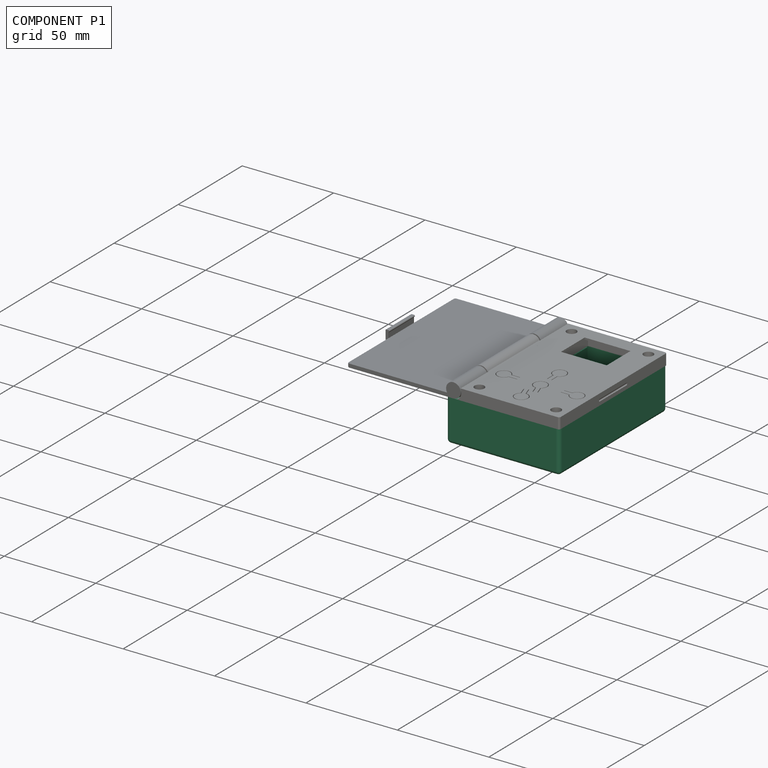
[diagram: component P1 — assembled]
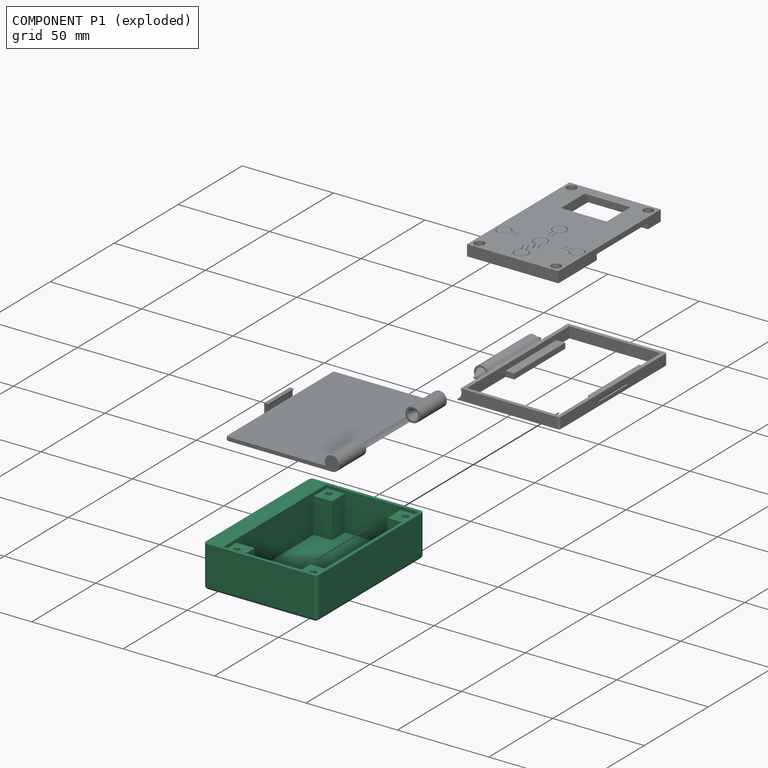
[diagram: component P1 — exploded]
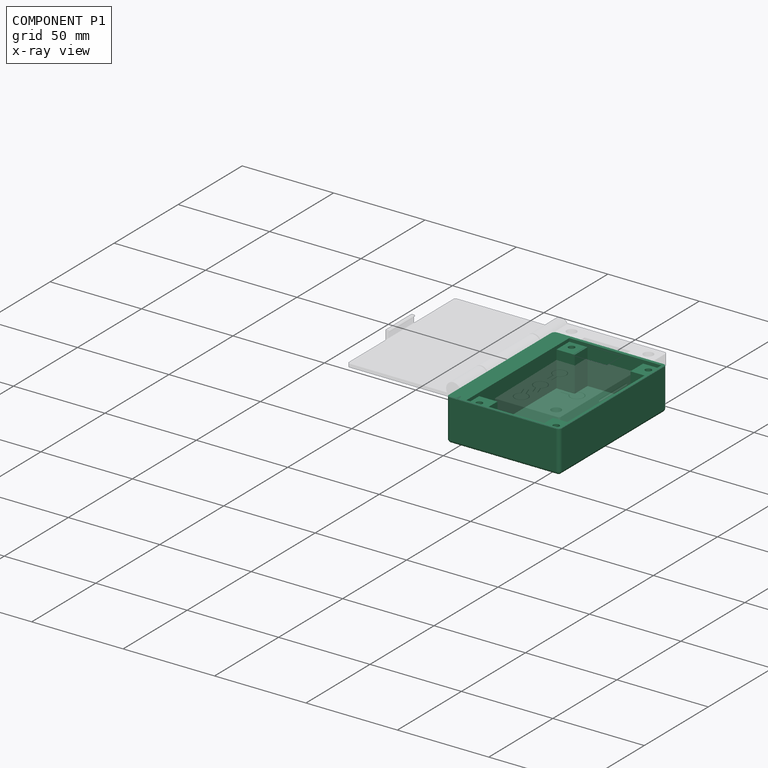
[diagram: component P1 — x-ray view]
COMPONENT P1 — recipe-attached ("LowerCase001", modeled in this document).
Held by: FASTENED mate "Joint002" to P2.
Construction recipe (the document's own serialized feature program — sketch geometry with constraints, then the solid features built on it; lengths are millimeters unless a unit is written):

FEATURE [Sketcher::SketchObject] Sketch024
  ArcFitTolerance = 1e-06
  AttachmentSupport = -> [XY_Plane005]
  FullyConstrained = true
  MakeInternals = false
  MapMode = 5
  expr: Constraints[8] = VarSet.Width + 2 * VarSet.WallThickness + 8 mm
  expr: Constraints[9] = VarSet.Length + 2 * VarSet.WallThickness
  sketch-geometry (4):
    g0: LineSegment StartX=-31 StartY=42 StartZ=0 EndX=-31 EndY=-42 EndZ=0
    g1: LineSegment StartX=-31 StartY=-42 StartZ=0 EndX=31 EndY=-42 EndZ=0
    g2: LineSegment StartX=31 StartY=-42 StartZ=0 EndX=31 EndY=42 EndZ=0
    g3: LineSegment StartX=31 StartY=42 StartZ=0 EndX=-31 EndY=42 EndZ=0
  constraints (10):
    c: Coincident(g0,g1)
    c: Coincident(g1,g2)
    c: Coincident(g2,g3)
    c: Coincident(g3,g0)
    c: Vertical(g2)
    c: Horizontal(g1)
    c: Symmetric(g2,g0,g-2)
    c: Symmetric(g0,g0,g-1)
    c: DistanceX(g3,g3) = 62
    c: DistanceY(g2,g2) = 84
FEATURE [PartDesign::Pad] Pad007
  Direction = (0,0,1)
  Length = 23
  Length2 = 10
  Profile = -> Sketch024
  ReferenceAxis = -> Sketch024 [N_Axis]
  Suppressed = false
  Type = 0
  expr: Length = VarSet.Height
FEATURE [Sketcher::SketchObject] Sketch025
  ArcFitTolerance = 1e-06
  AttachmentSupport = -> [Pad007]
  ExternalGeometry = -> [Pad007]
  FullyConstrained = true
  MakeInternals = false
  MapMode = 5
  Placement = pos=(0,0,23) rot=(0,0,1;0rad)
  expr: Constraints[17] = VarSet.WallThickness - 0.2 mm
  expr: Constraints[8] = VarSet.Width + 0.4 mm
  expr: Constraints[9] = VarSet.Length + 0.4 mm
  sketch-geometry (6):
    g0: LineSegment StartX=-21.2 StartY=40.2 StartZ=0 EndX=-21.2 EndY=-40.2 EndZ=0
    g1: LineSegment StartX=-21.2 StartY=-40.2 StartZ=0 EndX=29.2 EndY=-40.2 EndZ=0
    g2: LineSegment StartX=29.2 StartY=-40.2 StartZ=0 EndX=29.2 EndY=40.2 EndZ=0
    g3: LineSegment StartX=29.2 StartY=40.2 StartZ=0 EndX=-21.2 EndY=40.2 EndZ=0
    g4: LineSegment [constr] StartX=29.2 StartY=40.2 StartZ=0 EndX=29.2 EndY=42 EndZ=0
    g5: LineSegment [constr] StartX=29.2 StartY=40.2 StartZ=0 EndX=31 EndY=40.2 EndZ=0
  constraints (18):
    c: Coincident(g0,g1)
    c: Coincident(g1,g2)
    c: Coincident(g2,g3)
    c: Coincident(g3,g0)
    c: Vertical(g0)
    c: Vertical(g2)
    c: Horizontal(g1)
    c: Horizontal(g3)
    c: DistanceX(g3,g3) = 50.4
    c: DistanceY(g2,g2) = 80.4
    c: Coincident(g4,g2)
    c: PointOnObject(g4,g-3)
    c: Vertical(g4)
    c: Coincident(g5,g2)
    c: PointOnObject(g5,g-4)
    c: Horizontal(g5)
    c: Equal(g5,g4)
    c: Distance(g5,g5) = 1.8
FEATURE [PartDesign::Pocket] Pocket015
  BaseFeature = -> Pad007
  Direction = (0,0,-1)
  Length = 21
  Length2 = 5
  Profile = -> Sketch025
  ReferenceAxis = -> Sketch025 [N_Axis]
  Suppressed = false
  Type = 0
  expr: Length = VarSet.Height - VarSet.WallThickness
FEATURE [Sketcher::SketchObject] Sketch026
  ArcFitTolerance = 1e-06
  AttachmentSupport = -> [Pocket015]
  ExternalGeometry = -> [Pocket015]
  FullyConstrained = true
  MakeInternals = false
  MapMode = 5
  Placement = pos=(0,0,2) rot=(0,0,1;0rad)
  sketch-geometry (16):
    g0: LineSegment StartX=-21.2 StartY=40.2 StartZ=0 EndX=-21.2 EndY=30.2 EndZ=0
    g1: LineSegment StartX=-21.2 StartY=30.2 StartZ=0 EndX=-11.2 EndY=30.2 EndZ=0
    g2: LineSegment StartX=-11.2 StartY=30.2 StartZ=0 EndX=-11.2 EndY=40.2 EndZ=0
    g3: LineSegment StartX=-11.2 StartY=40.2 StartZ=0 EndX=-21.2 EndY=40.2 EndZ=0
    g4: LineSegment StartX=29.2 StartY=40.2 StartZ=0 EndX=19.2 EndY=40.2 EndZ=0
    g5: LineSegment StartX=19.2 StartY=40.2 StartZ=0 EndX=19.2 EndY=30.2 EndZ=0
    g6: LineSegment StartX=19.2 StartY=30.2 StartZ=0 EndX=29.2 EndY=30.2 EndZ=0
    g7: LineSegment StartX=29.2 StartY=30.2 StartZ=0 EndX=29.2 EndY=40.2 EndZ=0
    g8: LineSegment StartX=29.2 StartY=-40.2 StartZ=0 EndX=29.2 EndY=-30.2 EndZ=0
    g9: LineSegment StartX=29.2 StartY=-30.2 StartZ=0 EndX=19.2 EndY=-30.2 EndZ=0
    g10: LineSegment StartX=19.2 StartY=-30.2 StartZ=0 EndX=19.2 EndY=-40.2 EndZ=0
    g11: LineSegment StartX=19.2 StartY=-40.2 StartZ=0 EndX=29.2 EndY=-40.2 EndZ=0
    g12: LineSegment StartX=-21.2 StartY=-40.2 StartZ=0 EndX=-11.2 EndY=-40.2 EndZ=0
    g13: LineSegment StartX=-11.2 StartY=-40.2 StartZ=0 EndX=-11.2 EndY=-30.2 EndZ=0
    g14: LineSegment StartX=-11.2 StartY=-30.2 StartZ=0 EndX=-21.2 EndY=-30.2 EndZ=0
    g15: LineSegment StartX=-21.2 StartY=-30.2 StartZ=0 EndX=-21.2 EndY=-40.2 EndZ=0
  constraints (44):
    c: Coincident(g0,g1)
    c: Coincident(g1,g2)
    c: Coincident(g2,g3)
    c: Coincident(g3,g0)
    c: Vertical(g0)
    c: Vertical(g2)
    c: Horizontal(g1)
    c: Horizontal(g3)
    c: Coincident(g0,g-3)
    c: Coincident(g4,g5)
    c: Coincident(g5,g6)
    c: Coincident(g6,g7)
    c: Coincident(g7,g4)
    c: Horizontal(g4)
    c: Horizontal(g6)
    c: Vertical(g5)
    c: Vertical(g7)
    c: Coincident(g4,g-3)
    c: Coincident(g8,g9)
    c: Coincident(g9,g10)
    c: Coincident(g10,g11)
    c: Coincident(g11,g8)
    c: Vertical(g8)
    c: Vertical(g10)
    c: Horizontal(g9)
    c: Horizontal(g11)
    c: Coincident(g8,g-4)
    c: Coincident(g12,g13)
    c: Coincident(g13,g14)
    c: Coincident(g14,g15)
    c: Coincident(g15,g12)
    c: Horizontal(g12)
    c: Horizontal(g14)
    c: Vertical(g13)
    c: Vertical(g15)
    c: Coincident(g12,g-4)
    c: Equal(g2,g1)
    c: Equal(g1,g5)
    c: Equal(g5,g6)
    c: Equal(g6,g9)
    c: Equal(g9,g10)
    c: Equal(g10,g14)
    c: Equal(g14,g13)
    c: DistanceY(g2,g2) = 10
FEATURE [PartDesign::Pad] Pad008
  BaseFeature = -> Pocket015
  Direction = (0,0,1)
  Length = 19.2
  Length2 = 10
  Profile = -> Sketch026
  ReferenceAxis = -> Sketch026 [N_Axis]
  Suppressed = false
  Type = 0
  expr: Length = VarSet.Height - VarSet.WallThickness - VarSet.PCBThickness - 0.2 mm
FEATURE [Sketcher::SketchObject] Sketch027
  ArcFitTolerance = 1e-06
  AttachmentSupport = -> [Pad008]
  ExternalGeometry = -> [Pad008]
  FullyConstrained = true
  MakeInternals = false
  MapMode = 5
  Placement = pos=(0,0,21.2) rot=(0,0,1;0rad)
  sketch-geometry (12):
    g0: LineSegment [constr] StartX=-17 StartY=36 StartZ=0 EndX=-17 EndY=-36 EndZ=0
    g1: LineSegment [constr] StartX=-17 StartY=-36 StartZ=0 EndX=25 EndY=-36 EndZ=0
    g2: LineSegment [constr] StartX=25 StartY=-36 StartZ=0 EndX=25 EndY=36 EndZ=0
    g3: LineSegment [constr] StartX=25 StartY=36 StartZ=0 EndX=-17 EndY=36 EndZ=0
    g4: Circle CenterX=25 CenterY=36 CenterZ=0 NormalX=0 NormalY=0 NormalZ=1 AngleXU=0 Radius=1.7
    g5: Circle CenterX=-17 CenterY=36 CenterZ=0 NormalX=0 NormalY=0 NormalZ=1 AngleXU=0 Radius=1.7
    g6: Circle CenterX=25 CenterY=-36 CenterZ=0 NormalX=0 NormalY=0 NormalZ=1 AngleXU=0 Radius=1.7
    g7: Circle CenterX=-17 CenterY=-36 CenterZ=0 NormalX=0 NormalY=0 NormalZ=1 AngleXU=0 Radius=1.7
    g8: LineSegment [constr] StartX=25 StartY=36 StartZ=0 EndX=25 EndY=40.2 EndZ=0
    g9: LineSegment [constr] StartX=25 StartY=36 StartZ=0 EndX=29.2 EndY=36 EndZ=0
    g10: LineSegment [constr] StartX=-17 StartY=-36 StartZ=0 EndX=-17 EndY=-40.2 EndZ=0
    g11: LineSegment [constr] StartX=-17 StartY=-36 StartZ=0 EndX=-21.2 EndY=-36 EndZ=0
  constraints (32):
    c: Coincident(g0,g1)
    c: Coincident(g1,g2)
    c: Coincident(g2,g3)
    c: Coincident(g3,g0)
    c: Vertical(g0)
    c: Vertical(g2)
    c: Horizontal(g1)
    c: Horizontal(g3)
    c: DistanceX(g3,g3) = 42
    c: DistanceY(g2,g2) = 72
    c: Coincident(g4,g2)
    c: Coincident(g5,g0)
    c: Coincident(g6,g1)
    c: Coincident(g7,g0)
    c: Equal(g7,g5)
    c: Equal(g5,g4)
    c: Equal(g4,g6)
    c: Diameter(g4) = 3.4
    c: Coincident(g8,g2)
    c: PointOnObject(g8,g-3)
    c: Vertical(g8)
    c: Coincident(g9,g2)
    c: PointOnObject(g9,g-6)
    c: Horizontal(g9)
    c: Coincident(g10,g0)
    c: PointOnObject(g10,g-4)
    c: Vertical(g10)
    c: Coincident(g11,g0)
    c: PointOnObject(g11,g-5)
    c: Horizontal(g11)
    c: Equal(g10,g11)
    c: Equal(g11,g8)
FEATURE [PartDesign::Pocket] Pocket016
  BaseFeature = -> Pad008
  Direction = (0,0,-1)
  Length = 0
  Length2 = 5
  Profile = -> Sketch027
  ReferenceAxis = -> Sketch027 [N_Axis]
  Suppressed = false
  Type = 3
  UpToFace = -> Pad008 [Face4]
FEATURE [Sketcher::SketchObject] Sketch028
  ArcFitTolerance = 1e-06
  AttachmentSupport = -> [Pocket016]
  ExternalGeometry = -> [Pocket016]
  FullyConstrained = true
  MakeInternals = false
  MapMode = 5
  Placement = pos=(0,0,0) rot=(1,0,0;3.14159rad)
  sketch-geometry (28):
    g0: LineSegment StartX=-15.4123 StartY=33.25 StartZ=0 EndX=-13.8246 EndY=36 EndZ=0
    g1: LineSegment StartX=-13.8246 StartY=36 StartZ=0 EndX=-15.4123 EndY=38.75 EndZ=0
    g2: LineSegment StartX=-15.4123 StartY=38.75 StartZ=0 EndX=-18.5877 EndY=38.75 EndZ=0
    g3: LineSegment StartX=-18.5877 StartY=38.75 StartZ=0 EndX=-20.1754 EndY=36 EndZ=0
    g4: LineSegment StartX=-20.1754 StartY=36 StartZ=0 EndX=-18.5877 EndY=33.25 EndZ=0
    g5: LineSegment StartX=-18.5877 StartY=33.25 StartZ=0 EndX=-15.4123 EndY=33.25 EndZ=0
    g6: Circle [constr] CenterX=-17 CenterY=36 CenterZ=0 NormalX=0 NormalY=0 NormalZ=1 AngleXU=0 Radius=3.17543
    g7: LineSegment StartX=23.4123 StartY=33.25 StartZ=0 EndX=26.5877 EndY=33.25 EndZ=0
    g8: LineSegment StartX=26.5877 StartY=33.25 StartZ=0 EndX=28.1754 EndY=36 EndZ=0
    g9: LineSegment StartX=28.1754 StartY=36 StartZ=0 EndX=26.5877 EndY=38.75 EndZ=0
    g10: LineSegment StartX=26.5877 StartY=38.75 StartZ=0 EndX=23.4123 EndY=38.75 EndZ=0
    g11: LineSegment StartX=23.4123 StartY=38.75 StartZ=0 EndX=21.8246 EndY=36 EndZ=0
    g12: LineSegment StartX=21.8246 StartY=36 StartZ=0 EndX=23.4123 EndY=33.25 EndZ=0
    g13: Circle [constr] CenterX=25 CenterY=36 CenterZ=0 NormalX=0 NormalY=0 NormalZ=1 AngleXU=0 Radius=3.17543
    g14: LineSegment StartX=-15.4123 StartY=-33.25 StartZ=0 EndX=-18.5877 EndY=-33.25 EndZ=0
    g15: LineSegment StartX=-18.5877 StartY=-33.25 StartZ=0 EndX=-20.1754 EndY=-36 EndZ=0
    g16: LineSegment StartX=-20.1754 StartY=-36 StartZ=0 EndX=-18.5877 EndY=-38.75 EndZ=0
    g17: LineSegment StartX=-18.5877 StartY=-38.75 StartZ=0 EndX=-15.4123 EndY=-38.75 EndZ=0
    g18: LineSegment StartX=-15.4123 StartY=-38.75 StartZ=0 EndX=-13.8246 EndY=-36 EndZ=0
    g19: LineSegment StartX=-13.8246 StartY=-36 StartZ=0 EndX=-15.4123 EndY=-33.25 EndZ=0
    g20: Circle [constr] CenterX=-17 CenterY=-36 CenterZ=0 NormalX=0 NormalY=0 NormalZ=1 AngleXU=0 Radius=3.17543
    g21: LineSegment StartX=26.5877 StartY=-33.25 StartZ=0 EndX=23.4123 EndY=-33.25 EndZ=0
    g22: LineSegment StartX=23.4123 StartY=-33.25 StartZ=0 EndX=21.8246 EndY=-36 EndZ=0
    g23: LineSegment StartX=21.8246 StartY=-36 StartZ=0 EndX=23.4123 EndY=-38.75 EndZ=0
    g24: LineSegment StartX=23.4123 StartY=-38.75 StartZ=0 EndX=26.5877 EndY=-38.75 EndZ=0
    g25: LineSegment StartX=26.5877 StartY=-38.75 StartZ=0 EndX=28.1754 EndY=-36 EndZ=0
    g26: LineSegment StartX=28.1754 StartY=-36 StartZ=0 EndX=26.5877 EndY=-33.25 EndZ=0
    g27: Circle [constr] CenterX=25 CenterY=-36 CenterZ=0 NormalX=0 NormalY=0 NormalZ=1 AngleXU=0 Radius=3.17543
  constraints (64):
    c: Coincident(g0,g1)
    c: Coincident(g1,g2)
    c: Coincident(g2,g3)
    c: Coincident(g3,g4)
    c: Coincident(g4,g5)
    c: Coincident(g5,g0)
    c: Equal(g0, g1-g5) x5
    c: PointOnObject(g0,g6)
    c: PointOnObject(g1,g6)
    c: PointOnObject(g2,g6)
    c: PointOnObject(g3,g6)
    c: PointOnObject(g4,g6)
    c: PointOnObject(g5,g6)
    c: Coincident(g6,g-3)
    c: Coincident(g7,g8)
    c: Coincident(g8,g9)
    c: Coincident(g9,g10)
    c: Coincident(g10,g11)
    c: Coincident(g11,g12)
    c: Coincident(g12,g7)
    c: Equal(g7, g8-g12) x5
    c: PointOnObject(g7,g13)
    c: PointOnObject(g8,g13)
    c: PointOnObject(g9,g13)
    c: PointOnObject(g10,g13)
    c: PointOnObject(g11,g13)
    c: PointOnObject(g12,g13)
    c: Coincident(g13,g-4)
    c: Coincident(g14,g15)
    c: Coincident(g15,g16)
    c: Coincident(g16,g17)
    c: Coincident(g17,g18)
    c: Coincident(g18,g19)
    c: Coincident(g19,g14)
    c: Equal(g14, g15-g19) x5
    c: PointOnObject(g14,g20)
    c: PointOnObject(g15,g20)
    c: PointOnObject(g16,g20)
    c: PointOnObject(g17,g20)
    c: PointOnObject(g18,g20)
    c: PointOnObject(g19,g20)
    c: Coincident(g20,g-5)
    c: Coincident(g21,g22)
    c: Coincident(g22,g23)
    c: Coincident(g23,g24)
    c: Coincident(g24,g25)
    c: Coincident(g25,g26)
    c: Coincident(g26,g21)
    c: Equal(g21, g22-g26) x5
    c: PointOnObject(g21,g27)
    c: PointOnObject(g22,g27)
    c: PointOnObject(g23,g27)
    c: PointOnObject(g24,g27)
    c: PointOnObject(g25,g27)
    c: PointOnObject(g26,g27)
    c: Coincident(g27,g-6)
    c: Horizontal(g14)
    c: Horizontal(g21)
    c: Horizontal(g5)
    c: Horizontal(g7)
    c: Equal(g2,g10)
    c: Equal(g10,g14)
    c: Equal(g14,g21)
    c: DistanceY(g0,g1) = 5.5
FEATURE [PartDesign::Pocket] Pocket017
  BaseFeature = -> Pocket016
  Direction = (0,0,1)
  Length = 18.4
  Length2 = 5
  Profile = -> Sketch028
  ReferenceAxis = -> Sketch028 [N_Axis]
  Suppressed = false
  Type = 0
  expr: Length = VarSet.Height - VarSet.PCBThickness - 3 mm
FEATURE [PartDesign::Fillet] Fillet004
  Base = -> Pocket017 [Edge2,Edge8,Edge5,Edge11,Edge9,Edge6,Edge1,Edge3]
  BaseFeature = -> Pocket017
  Radius = 2
  SupportTransform = false
  Suppressed = false
  UseAllEdges = false
FEATURE [PartDesign::Body] Body003  label="LowerCase"
  AllowCompound = false
  Group = -> [Sketch024,Pad007,Sketch025,Pocket015,Sketch026,Pad008,Sketch027,Pocket016,Sketch028,Pocket017,Fillet004]
  Origin = -> Origin005
  Tip = -> Fillet004
PROVENANCE & LICENSES
Assembly and component geometry: a FreeCAD (.FCStd) document from a public repository crawl; components, placements and joints were extracted with FreeCAD and each solid tessellated.
Construction recipes: the document's own serialized feature recipes (and, for linked parts, the recipes of companion documents from the same project).
License: as declared in the source repository (recorded in the dataset sidecar).
Joints: native FreeCAD joints and A2plus constraints are mapped to standard mate types.
Verification: 4 of this assembly's 4 components carry a construction recipe (4 from this document itself); the rest are geometry-only. Every component's tessellation passed the extraction mesh gates (mesh-volume checksum against the B-rep where available, bounding-box inflation <= 2%).
Renders: orthographic iso camera (az 35 / el 25); the floor grid conveys scale (grid pitch printed in each image; no ruler). In the exploded view each component is displaced by its stored offset vector: the offsets alone carry the explosion direction (mate normal/axis signs are not orientation cues and do not encode it), and separation distances are assigned per mate-chain, not proportionally to assembly-order depth.
